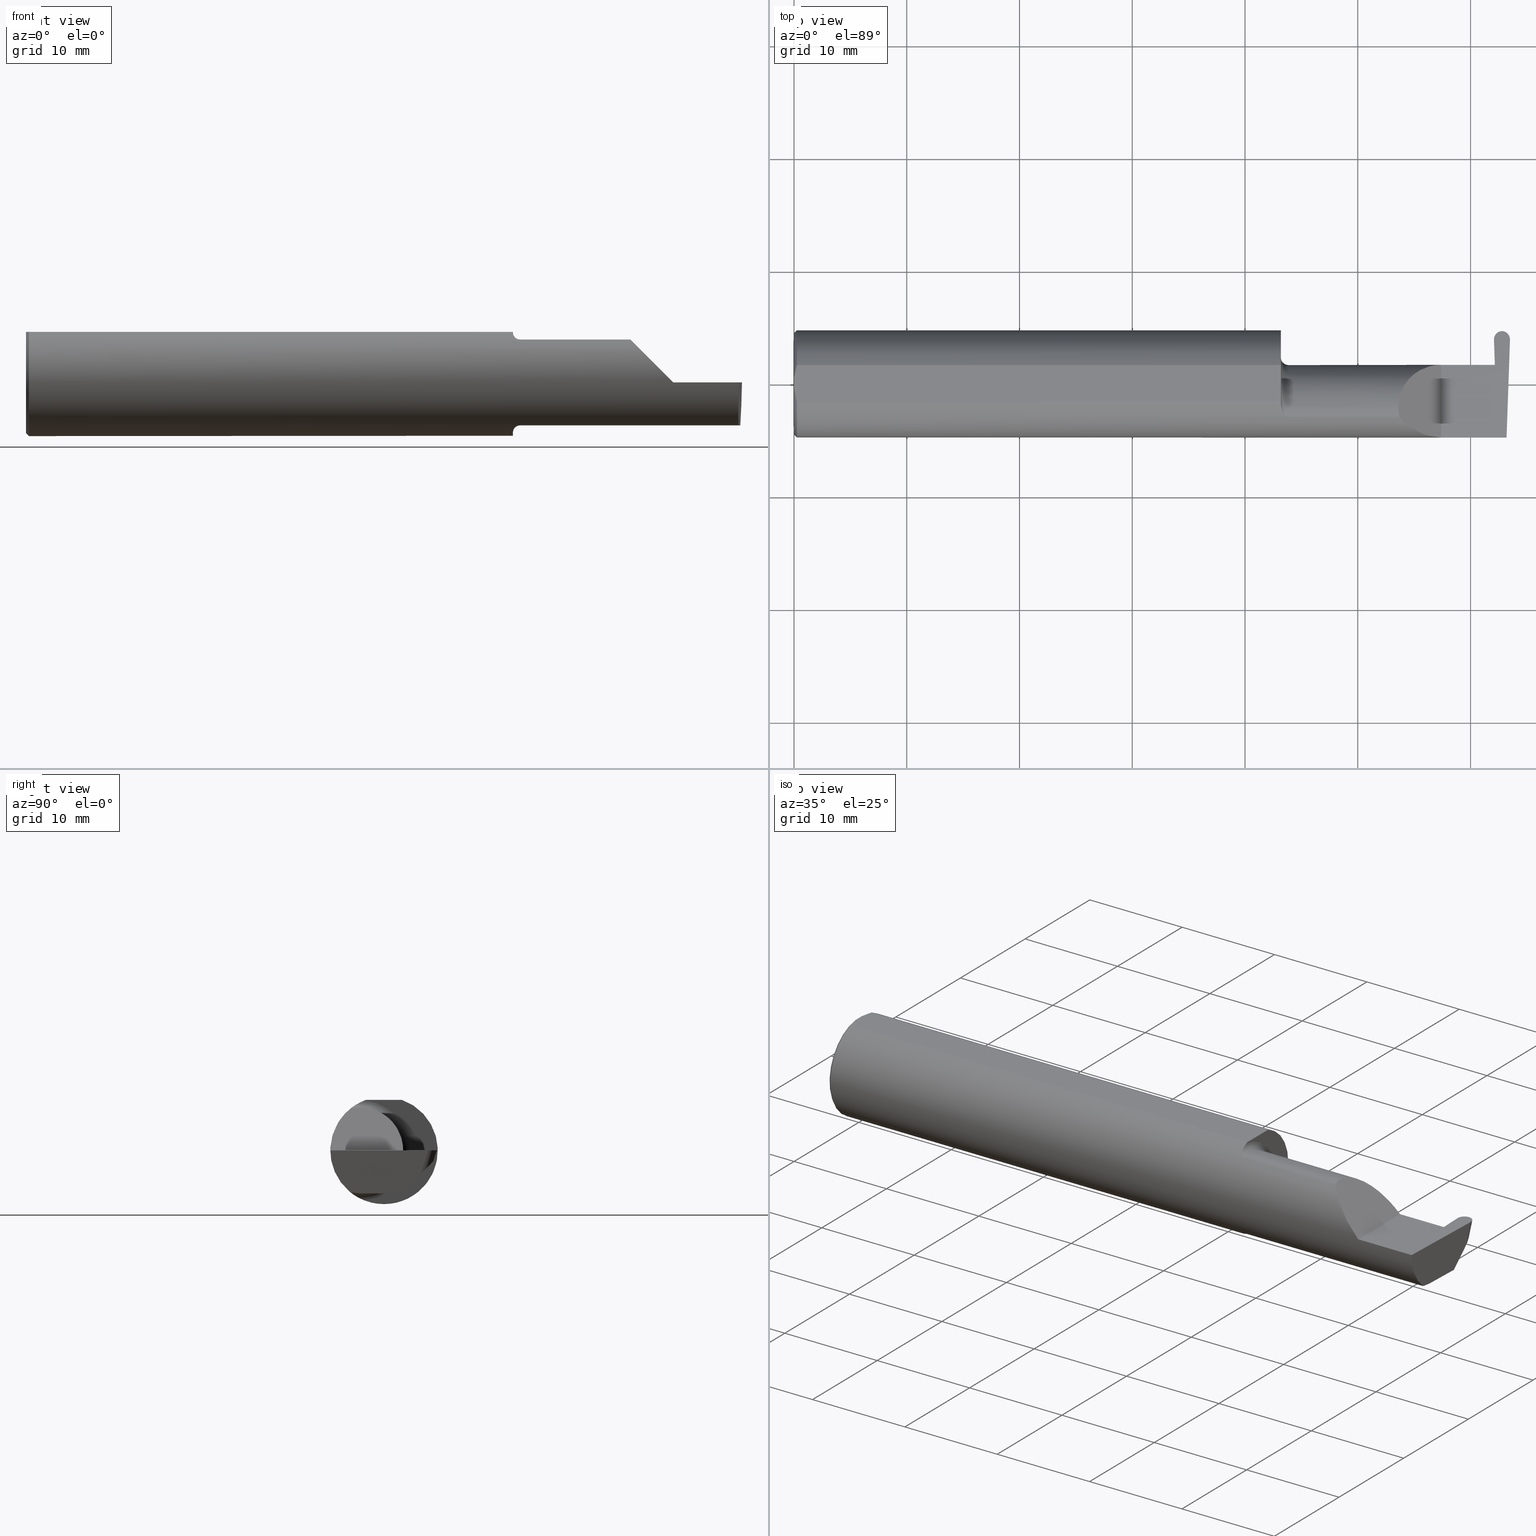
[diagram: canonical four-view strip — front | top / right | iso, engineering-drawing reading convention]
A machine part, canonical four-view strip (front | top / right | iso — engineering-drawing reading convention). The complete STEP part file that produces these views, byte-faithful:
ISO-10303-21;
HEADER;
FILE_DESCRIPTION (( 'STEP AP203' ),
    '1' );
FILE_NAME ('222125-GFR055-12.STEP',
    '2024-06-26T18:48:59',
    ( '' ),
    ( '' ),
    'SwSTEP 2.0',
    'SolidWorks 2024',
    '' );
FILE_SCHEMA (( 'CONFIG_CONTROL_DESIGN' ));
ENDSEC;

DATA;
#1 = LINE ( 'NONE', #637, #791 ) ;
#2 = VERTEX_POINT ( 'NONE', #398 ) ;
#3 = DIRECTION ( 'NONE',  ( 1.000000000000000000, 0.000000000000000000, 0.000000000000000000 ) ) ;
#4 = DIRECTION ( 'NONE',  ( -1.000000000000000000, -0.000000000000000000, -0.000000000000000000 ) ) ;
#5 = ORIENTED_EDGE ( 'NONE', *, *, #61, .F. ) ;
#6 = CARTESIAN_POINT ( 'NONE',  ( 2.469848201527405251, 0.1789430992080996430, 0.07304586875446965333 ) ) ;
#7 = EDGE_CURVE ( 'NONE', #12, #704, #144, .T. ) ;
#8 = CC_DESIGN_APPROVAL ( #716, ( #85 ) ) ;
#9 = DIRECTION ( 'NONE',  ( 0.000000000000000000, 1.000000000000000000, 0.000000000000000000 ) ) ;
#10 = EDGE_LOOP ( 'NONE', ( #45, #421, #110, #97, #51, #138, #318, #122 ) ) ;
#11 = CARTESIAN_POINT ( 'NONE',  ( 2.488006099050898090, -0.1873499999999999888, 0.000000000000000000 ) ) ;
#12 = VERTEX_POINT ( 'NONE', #316 ) ;
#13 = AXIS2_PLACEMENT_3D ( 'NONE', #232, #229, #283 ) ;
#14 = VERTEX_POINT ( 'NONE', #259 ) ;
#15 = PLANE ( 'NONE',  #194 ) ;
#16 = CIRCLE ( 'NONE', #303, 0.1773499999999999521 ) ;
#17 = EDGE_CURVE ( 'NONE', #14, #160, #527, .T. ) ;
#18 = VECTOR ( 'NONE', #664, 39.37007874015748143 ) ;
#19 = CARTESIAN_POINT ( 'NONE',  ( 1.724999999999999867, -0.08334999999999999354, 0.000000000000000000 ) ) ;
#20 = EDGE_LOOP ( 'NONE', ( #375, #736, #586, #486, #120, #430, #731, #69, #662, #519, #480, #152, #294, #5, #434 ) ) ;
#21 = CARTESIAN_POINT ( 'NONE',  ( 2.084449999999999914, -0.1172600179964006784, -0.1461167706989303650 ) ) ;
#22 = DIRECTION ( 'NONE',  ( 0.000000000000000000, 0.000000000000000000, -1.000000000000000000 ) ) ;
#23 = CIRCLE ( 'NONE', #636, 0.1873499999999999888 ) ;
#24 = MECHANICAL_CONTEXT ( 'NONE', #324, 'mechanical' ) ;
#25 = VERTEX_POINT ( 'NONE', #402 ) ;
#26 = EDGE_CURVE ( 'NONE', #672, #749, #309, .T. ) ;
#27 = VECTOR ( 'NONE', #201, 39.37007874015748143 ) ;
#28 = DIRECTION ( 'NONE',  ( 0.000000000000000000, 0.000000000000000000, -1.000000000000000000 ) ) ;
#29 = PERSON_AND_ORGANIZATION_ROLE ( 'creator' ) ;
#30 = ORIENTED_EDGE ( 'NONE', *, *, #297, .T. ) ;
#31 = AXIS2_PLACEMENT_3D ( 'NONE', #108, #800, #559 ) ;
#32 = ADVANCED_FACE ( 'NONE', ( #698 ), #343, .F. ) ;
#33 = DIRECTION ( 'NONE',  ( -1.000000000000000000, -0.000000000000000000, -0.000000000000000000 ) ) ;
#34 = CARTESIAN_POINT ( 'NONE',  ( 2.488618975064261996, -0.09477667630339429994, -0.1499999999999999944 ) ) ;
#35 = ORIENTED_EDGE ( 'NONE', *, *, #634, .F. ) ;
#36 = CARTESIAN_POINT ( 'NONE',  ( 2.260000000000000231, -0.2500000000000000555, 2.939152317953647352E-17 ) ) ;
#37 = EDGE_CURVE ( 'NONE', #134, #299, #460, .T. ) ;
#38 = LINE ( 'NONE', #589, #554 ) ;
#39 = APPROVAL_DATE_TIME ( #354, #716 ) ;
#40 = ORIENTED_EDGE ( 'NONE', *, *, #745, .T. ) ;
#41 = CC_DESIGN_APPROVAL ( #682, ( #357 ) ) ;
#42 = CARTESIAN_POINT ( 'NONE',  ( 1.701062863587533558, -0.08334999999998819742, 0.1677879614275170628 ) ) ;
#43 = LINE ( 'NONE', #233, #737 ) ;
#44 = APPROVAL_ROLE ( '' ) ;
#45 = ORIENTED_EDGE ( 'NONE', *, *, #441, .F. ) ;
#46 = CARTESIAN_POINT ( 'NONE',  ( 1.709249444250374728, -0.1073163636891285855, 0.1536158790136665231 ) ) ;
#47 = ORIENTED_EDGE ( 'NONE', *, *, #462, .T. ) ;
#48 = AXIS2_PLACEMENT_3D ( 'NONE', #6, #75, #688 ) ;
#49 = EDGE_CURVE ( 'NONE', #416, #215, #521, .T. ) ;
#50 = CARTESIAN_POINT ( 'NONE',  ( 2.498888753813990782, 0.1529658124618460957, -0.05733723908130370500 ) ) ;
#51 = ORIENTED_EDGE ( 'NONE', *, *, #376, .T. ) ;
#52 = DIRECTION ( 'NONE',  ( 0.02739170151060046562, 0.3089010440752013031, 0.9506996579664918068 ) ) ;
#53 = ORIENTED_EDGE ( 'NONE', *, *, #404, .T. ) ;
#54 = ADVANCED_FACE ( 'NONE', ( #455 ), #126, .F. ) ;
#55 = CARTESIAN_POINT ( 'NONE',  ( 1.701062863587535334, -0.08334999999999991027, -0.1677879614275112619 ) ) ;
#56 = CIRCLE ( 'NONE', #31, 0.1873499999999999888 ) ;
#57 = CARTESIAN_POINT ( 'NONE',  ( 1.699999999999999956, 0.000000000000000000, 0.000000000000000000 ) ) ;
#58 = ORIENTED_EDGE ( 'NONE', *, *, #351, .F. ) ;
#59 = VECTOR ( 'NONE', #213, 39.37007874015748143 ) ;
#60 = LINE ( 'NONE', #200, #290 ) ;
#61 = EDGE_CURVE ( 'NONE', #672, #344, #465, .T. ) ;
#62 = EDGE_LOOP ( 'NONE', ( #178, #450, #87, #53, #394, #807 ) ) ;
#63 = CYLINDRICAL_SURFACE ( 'NONE', #48, 0.02800000000000000058 ) ;
#64 = CARTESIAN_POINT ( 'NONE',  ( 0.000000000000000000, 0.000000000000000000, 0.000000000000000000 ) ) ;
#65 =( NAMED_UNIT ( * ) PLANE_ANGLE_UNIT ( ) SI_UNIT ( $, .RADIAN. ) );
#66 = ORIENTED_EDGE ( 'NONE', *, *, #117, .T. ) ;
#67 = DIRECTION ( 'NONE',  ( -1.000000000000000000, -0.000000000000000000, -0.000000000000000000 ) ) ;
#68 = CARTESIAN_POINT ( 'NONE',  ( 2.443917087302114766, 0.1556210691174950977, 0.000000000000000000 ) ) ;
#69 = ORIENTED_EDGE ( 'NONE', *, *, #382, .F. ) ;
#70 = APPROVAL ( #730, 'UNSPECIFIED' ) ;
#71 = EDGE_CURVE ( 'NONE', #444, #323, #1, .T. ) ;
#72 = FACE_OUTER_BOUND ( 'NONE', #624, .T. ) ;
#73 = DIRECTION ( 'NONE',  ( 0.9998367324388628408, 0.0003153570480505037848, 0.01806679318280284691 ) ) ;
#74 = ORIENTED_EDGE ( 'NONE', *, *, #254, .T. ) ;
#75 = DIRECTION ( 'NONE',  ( -0.02739170151060045175, 0.3089010440752013587, 0.9506996579664920288 ) ) ;
#76 = DIRECTION ( 'NONE',  ( 0.000000000000000000, 0.000000000000000000, -1.000000000000000000 ) ) ;
#77 = EDGE_CURVE ( 'NONE', #168, #467, #140, .T. ) ;
#78 = CARTESIAN_POINT ( 'NONE',  ( 2.260000000000000231, -0.1873499999999999888, 2.939152317953647352E-17 ) ) ;
#79 = DIRECTION ( 'NONE',  ( 0.000000000000000000, 0.000000000000000000, 1.000000000000000000 ) ) ;
#80 = ORIENTED_EDGE ( 'NONE', *, *, #541, .F. ) ;
#81 = DIRECTION ( 'NONE',  ( -1.000000000000000000, 0.000000000000000000, 1.224646799147353947E-16 ) ) ;
#82 = VECTOR ( 'NONE', #772, 39.37007874015748143 ) ;
#83 = VECTOR ( 'NONE', #511, 39.37007874015748143 ) ;
#84 = CARTESIAN_POINT ( 'NONE',  ( 2.470340804352568753, 0.1370935646770005678, -0.05575375471034092062 ) ) ;
#85 = PRODUCT_DEFINITION ( 'UNKNOWN', '', #482, #98 ) ;
#86 = DATE_AND_TIME ( #349, #610 ) ;
#87 = ORIENTED_EDGE ( 'NONE', *, *, #765, .F. ) ;
#88 = DIRECTION ( 'NONE',  ( 0.000000000000000000, 0.000000000000000000, 1.000000000000000000 ) ) ;
#89 = LINE ( 'NONE', #778, #798 ) ;
#90 = EDGE_CURVE ( 'NONE', #403, #160, #243, .T. ) ;
#91 = APPROVAL_DATE_TIME ( #657, #682 ) ;
#92 = ORIENTED_EDGE ( 'NONE', *, *, #77, .T. ) ;
#93 =( BOUNDED_CURVE ( )  B_SPLINE_CURVE ( 3, ( #417, #352, #94, #540 ),
 .UNSPECIFIED., .F., .T. ) 
 B_SPLINE_CURVE_WITH_KNOTS ( ( 4, 4 ),
 ( 4.712388980384688786, 5.606916381293135743 ),
 .UNSPECIFIED. ) 
 CURVE ( )  GEOMETRIC_REPRESENTATION_ITEM ( )  RATIONAL_B_SPLINE_CURVE ( ( 1.000000000000000000, 0.9344226172588803170, 0.9344226172588803170, 1.000000000000000000 ) ) 
 REPRESENTATION_ITEM ( '' )  );
#94 = CARTESIAN_POINT ( 'NONE',  ( 2.150065971957465294, -0.1623470442677542591, 0.1099340280425336325 ) ) ;
#95 = CARTESIAN_POINT ( 'NONE',  ( 0.000000000000000000, 0.000000000000000000, 0.000000000000000000 ) ) ;
#96 = APPROVAL_ROLE ( '' ) ;
#97 = ORIENTED_EDGE ( 'NONE', *, *, #254, .F. ) ;
#98 = DESIGN_CONTEXT ( 'detailed design', #372, 'design' ) ;
#99 = B_SPLINE_CURVE_WITH_KNOTS ( 'NONE', 3,
 ( #118, #555, #295, #742 ),
 .UNSPECIFIED., .F., .F.,
 ( 4, 4 ),
 ( 0.009771445421851331775, 0.01092787937989104369 ),
 .UNSPECIFIED. ) ;
#100 = DIRECTION ( 'NONE',  ( 1.000000000000000000, 0.000000000000000000, 0.000000000000000000 ) ) ;
#101 = CARTESIAN_POINT ( 'NONE',  ( 2.437842457400084761, 0.06658908270190944112, -0.003489949670253273024 ) ) ;
#102 = EDGE_LOOP ( 'NONE', ( #228, #252, #766, #276, #80, #260 ) ) ;
#103 = DIRECTION ( 'NONE',  ( 0.000000000000000000, 0.000000000000000000, 1.000000000000000000 ) ) ;
#104 = CARTESIAN_POINT ( 'NONE',  ( 2.455608802696933157, 0.1715101730526973345, -0.03879287849045225112 ) ) ;
#105 = PERSON_AND_ORGANIZATION_ROLE ( 'creator' ) ;
#106 = VERTEX_POINT ( 'NONE', #131 ) ;
#107 = EDGE_CURVE ( 'NONE', #558, #749, #491, .T. ) ;
#108 = CARTESIAN_POINT ( 'NONE',  ( 0.01000000000000013205, 0.000000000000000000, 0.000000000000000000 ) ) ;
#109 = CARTESIAN_POINT ( 'NONE',  ( 2.445011246186010734, 0.1529658124618456516, -0.05733723908130411440 ) ) ;
#110 = ORIENTED_EDGE ( 'NONE', *, *, #107, .F. ) ;
#111 = CARTESIAN_POINT ( 'NONE',  ( 1.702380638915944600, -0.09060738690120614947, -0.1640321561807271122 ) ) ;
#112 = CARTESIAN_POINT ( 'NONE',  ( 2.472196486352602030, 0.1846500000000000363, 0.000000000000000000 ) ) ;
#113 = VERTEX_POINT ( 'NONE', #192 ) ;
#114 = CARTESIAN_POINT ( 'NONE',  ( 2.109999999999998987, -0.08334999999999999354, 0.1499999999999999944 ) ) ;
#115 = CARTESIAN_POINT ( 'NONE',  ( 0.001616639753276021213, 0.03405189565400638246, 0.1763499999999999235 ) ) ;
#116 = ORIENTED_EDGE ( 'NONE', *, *, #231, .F. ) ;
#117 = EDGE_CURVE ( 'NONE', #467, #113, #16, .T. ) ;
#118 = CARTESIAN_POINT ( 'NONE',  ( 0.01000000000000013205, -0.06325108694718235836, 0.1763499999999999235 ) ) ;
#119 = DIRECTION ( 'NONE',  ( -1.000000000000000000, -0.000000000000000000, -0.000000000000000000 ) ) ;
#120 = ORIENTED_EDGE ( 'NONE', *, *, #569, .F. ) ;
#121 = CARTESIAN_POINT ( 'NONE',  ( 0.000000000000000000, 0.01880691362238934988, 0.1763499999999999235 ) ) ;
#122 = ORIENTED_EDGE ( 'NONE', *, *, #305, .F. ) ;
#123 = VECTOR ( 'NONE', #782, 39.37007874015748143 ) ;
#124 = VECTOR ( 'NONE', #646, 39.37007874015748143 ) ;
#125 = DIRECTION ( 'NONE',  ( 0.000000000000000000, -0.7071067811865515695, 0.7071067811865434649 ) ) ;
#126 = PLANE ( 'NONE',  #453 ) ;
#127 = ORIENTED_EDGE ( 'NONE', *, *, #117, .F. ) ;
#128 = AXIS2_PLACEMENT_3D ( 'NONE', #557, #801, #177 ) ;
#129 = CARTESIAN_POINT ( 'NONE',  ( 2.449754845031671291, 0.002105059811798251287, -0.1500000000000000222 ) ) ;
#130 = AXIS2_PLACEMENT_3D ( 'NONE', #756, #647, #79 ) ;
#131 = CARTESIAN_POINT ( 'NONE',  ( 0.01000000000000013205, 0.06325108694718235836, 0.1763499999999999235 ) ) ;
#132 = ADVANCED_FACE ( 'NONE', ( #137 ), #393, .F. ) ;
#133 = EDGE_CURVE ( 'NONE', #704, #386, #322, .T. ) ;
#134 = VERTEX_POINT ( 'NONE', #763 ) ;
#135 = CIRCLE ( 'NONE', #663, 0.02499999999999993894 ) ;
#136 = CARTESIAN_POINT ( 'NONE',  ( 2.471950000000000536, 0.1818703299733204493, -0.008554944679891244089 ) ) ;
#137 = FACE_OUTER_BOUND ( 'NONE', #607, .T. ) ;
#138 = ORIENTED_EDGE ( 'NONE', *, *, #237, .T. ) ;
#139 = FACE_OUTER_BOUND ( 'NONE', #561, .T. ) ;
#140 = LINE ( 'NONE', #448, #549 ) ;
#141 = EDGE_CURVE ( 'NONE', #25, #14, #522, .T. ) ;
#142 = ORIENTED_EDGE ( 'NONE', *, *, #297, .F. ) ;
#143 = FACE_OUTER_BOUND ( 'NONE', #580, .T. ) ;
#144 = LINE ( 'NONE', #512, #387 ) ;
#145 = DIRECTION ( 'NONE',  ( -0.9992386149554828290, 0.03489418134010779937, 0.01745240643728358798 ) ) ;
#146 = CARTESIAN_POINT ( 'NONE',  ( 0.000000000000000000, 0.000000000000000000, -0.1773499999999999521 ) ) ;
#147 = ORIENTED_EDGE ( 'NONE', *, *, #395, .T. ) ;
#148 = PLANE ( 'NONE',  #249 ) ;
#149 = AXIS2_PLACEMENT_3D ( 'NONE', #644, #582, #640 ) ;
#150 = DIRECTION ( 'NONE',  ( -0.03489949670249503644, 0.9993908270190959842, -0.000000000000000000 ) ) ;
#151 = APPROVAL_STATUS ( 'not_yet_approved' ) ;
#152 = ORIENTED_EDGE ( 'NONE', *, *, #608, .F. ) ;
#153 = CARTESIAN_POINT ( 'NONE',  ( 2.443960049305725857, 0.1543907983005533280, 0.000000000000000000 ) ) ;
#154 = CARTESIAN_POINT ( 'NONE',  ( 2.447024025498200750, 0.06664999999999991764, 0.000000000000000000 ) ) ;
#155 = COORDINATED_UNIVERSAL_TIME_OFFSET ( 8, 0, .BEHIND. ) ;
#156 = ORIENTED_EDGE ( 'NONE', *, *, #231, .T. ) ;
#157 = EDGE_CURVE ( 'NONE', #248, #613, #656, .T. ) ;
#158 = CARTESIAN_POINT ( 'NONE',  ( 0.000000000000000000, 0.000000000000000000, 0.000000000000000000 ) ) ;
#159 = DIRECTION ( 'NONE',  ( 0.000000000000000000, 0.000000000000000000, 1.000000000000000000 ) ) ;
#160 = VERTEX_POINT ( 'NONE', #154 ) ;
#161 = AXIS2_PLACEMENT_3D ( 'NONE', #263, #708, #81 ) ;
#162 = CARTESIAN_POINT ( 'NONE',  ( 1.711340974786206282, -0.1102890168945987320, -0.1514792188789464700 ) ) ;
#163 = LINE ( 'NONE', #671, #378 ) ;
#164 = ORIENTED_EDGE ( 'NONE', *, *, #214, .F. ) ;
#165 = EDGE_CURVE ( 'NONE', #308, #495, #89, .T. ) ;
#166 = DIRECTION ( 'NONE',  ( 0.000000000000000000, 0.000000000000000000, 1.000000000000000000 ) ) ;
#167 = CARTESIAN_POINT ( 'NONE',  ( 1.701062863587533558, -0.08334999999998819742, 0.1677879614275170628 ) ) ;
#168 = VERTEX_POINT ( 'NONE', #419 ) ;
#169 = FACE_OUTER_BOUND ( 'NONE', #287, .T. ) ;
#170 = VERTEX_POINT ( 'NONE', #729 ) ;
#171 = CARTESIAN_POINT ( 'NONE',  ( 1.724999999999999867, -0.08334999999999999354, 0.000000000000000000 ) ) ;
#172 = EDGE_CURVE ( 'NONE', #699, #323, #723, .T. ) ;
#173 = CARTESIAN_POINT ( 'NONE',  ( 1.699999999999999956, 0.06325108694718235836, 0.1763499999999999235 ) ) ;
#174 =( BOUNDED_CURVE ( )  B_SPLINE_CURVE ( 3, ( #588, #719, #274, #153 ),
 .UNSPECIFIED., .F., .T. ) 
 B_SPLINE_CURVE_WITH_KNOTS ( ( 4, 4 ),
 ( 6.199081184676152212, 7.797674339294876411 ),
 .UNSPECIFIED. ) 
 CURVE ( )  GEOMETRIC_REPRESENTATION_ITEM ( )  RATIONAL_B_SPLINE_CURVE ( ( 1.000000000000000000, 0.7981407609938082626, 0.7981407609938082626, 1.000000000000000000 ) ) 
 REPRESENTATION_ITEM ( '' )  );
#175 = ORIENTED_EDGE ( 'NONE', *, *, #395, .F. ) ;
#176 = LINE ( 'NONE', #373, #598 ) ;
#177 = DIRECTION ( 'NONE',  ( 0.000000000000000000, 0.000000000000000000, -1.000000000000000000 ) ) ;
#178 = ORIENTED_EDGE ( 'NONE', *, *, #26, .F. ) ;
#179 = CC_DESIGN_APPROVAL ( #70, ( #482 ) ) ;
#180 = DIMENSIONAL_EXPONENTS ( 1.000000000000000000, 0.000000000000000000, 0.000000000000000000, 0.000000000000000000, 0.000000000000000000, 0.000000000000000000, 0.000000000000000000 ) ;
#181 = CARTESIAN_POINT ( 'NONE',  ( 2.472196486352602030, 0.1846500000000000363, 0.000000000000000000 ) ) ;
#182 = EDGE_LOOP ( 'NONE', ( #797, #633, #390, #269 ) ) ;
#183 = DIRECTION ( 'NONE',  ( 0.000000000000000000, 0.000000000000000000, -1.000000000000000000 ) ) ;
#184 = DIRECTION ( 'NONE',  ( -0.03489949670249503644, 0.9993908270190959842, 0.000000000000000000 ) ) ;
#185 = AXIS2_PLACEMENT_3D ( 'NONE', #19, #264, #204 ) ;
#186 = VECTOR ( 'NONE', #211, 39.37007874015748143 ) ;
#187 = DIRECTION ( 'NONE',  ( 1.000000000000000000, -0.000000000000000000, -0.000000000000000000 ) ) ;
#188 = CARTESIAN_POINT ( 'NONE',  ( 1.724999999999999867, -0.08334999999999999354, 0.000000000000000000 ) ) ;
#189 = ORIENTED_EDGE ( 'NONE', *, *, #296, .T. ) ;
#190 = PLANE ( 'NONE',  #556 ) ;
#191 =( BOUNDED_CURVE ( )  B_SPLINE_CURVE ( 3, ( #236, #550, #680, #374 ),
 .UNSPECIFIED., .F., .T. ) 
 B_SPLINE_CURVE_WITH_KNOTS ( ( 4, 4 ),
 ( 5.852427379562165299, 6.746954780470612256 ),
 .UNSPECIFIED. ) 
 CURVE ( )  GEOMETRIC_REPRESENTATION_ITEM ( )  RATIONAL_B_SPLINE_CURVE ( ( 1.000000000000000000, 0.9344226172588803170, 0.9344226172588803170, 1.000000000000000000 ) ) 
 REPRESENTATION_ITEM ( '' )  );
#192 = CARTESIAN_POINT ( 'NONE',  ( 0.000000000000000000, 0.000000000000000000, -0.1773499999999999521 ) ) ;
#193 = ORIENTED_EDGE ( 'NONE', *, *, #37, .F. ) ;
#194 = AXIS2_PLACEMENT_3D ( 'NONE', #530, #145, #771 ) ;
#195 = CARTESIAN_POINT ( 'NONE',  ( 1.724999999999999867, -0.08334999999999999354, 0.1499999999999999944 ) ) ;
#196 = EDGE_CURVE ( 'NONE', #12, #355, #630, .T. ) ;
#197 = ORIENTED_EDGE ( 'NONE', *, *, #516, .T. ) ;
#198 = EDGE_CURVE ( 'NONE', #170, #134, #794, .T. ) ;
#199 = TOROIDAL_SURFACE ( 'NONE', #185, 0.1749999999999999334, 0.02499999999999993894 ) ;
#200 = CARTESIAN_POINT ( 'NONE',  ( 1.699999999999999956, -0.08334999999999997966, -0.1499999999999999944 ) ) ;
#201 = DIRECTION ( 'NONE',  ( 1.000000000000000000, -0.000000000000000000, -0.000000000000000000 ) ) ;
#202 = ORIENTED_EDGE ( 'NONE', *, *, #505, .F. ) ;
#203 = CARTESIAN_POINT ( 'NONE',  ( 2.449666718533190846, 0.06409798100084941608, -0.1462050705423013908 ) ) ;
#204 = DIRECTION ( 'NONE',  ( 0.000000000000000000, 0.000000000000000000, 1.000000000000000000 ) ) ;
#205 = COORDINATED_UNIVERSAL_TIME_OFFSET ( 8, 0, .BEHIND. ) ;
#206 = ORIENTED_EDGE ( 'NONE', *, *, #581, .T. ) ;
#207 = FACE_OUTER_BOUND ( 'NONE', #694, .T. ) ;
#208 = CARTESIAN_POINT ( 'NONE',  ( 2.496474746315712867, 0.1068850723125632091, -0.1034179792305871259 ) ) ;
#209 = CALENDAR_DATE ( 2024, 26, 6 ) ;
#210 = ORIENTED_EDGE ( 'NONE', *, *, #669, .F. ) ;
#211 = DIRECTION ( 'NONE',  ( -1.000000000000000000, -0.000000000000000000, -0.000000000000000000 ) ) ;
#212 = ADVANCED_FACE ( 'NONE', ( #665 ), #275, .T. ) ;
#213 = DIRECTION ( 'NONE',  ( -0.03701744261649874551, 0.7066221440565398915, 0.7066221440565479961 ) ) ;
#214 = EDGE_CURVE ( 'NONE', #495, #570, #601, .T. ) ;
#215 = VERTEX_POINT ( 'NONE', #348 ) ;
#216 = CARTESIAN_POINT ( 'NONE',  ( 2.449736488887833907, 0.06030305154315079852, -0.1500000000000000500 ) ) ;
#217 = DIRECTION ( 'NONE',  ( 0.000000000000000000, 0.9510565162951533091, -0.3090169943749483950 ) ) ;
#218 = PRODUCT ( '222125-GFR055-12', '222125-GFR055-12', '', ( #24 ) ) ;
#219 = DIRECTION ( 'NONE',  ( 1.000000000000000000, 0.000000000000000000, -0.000000000000000000 ) ) ;
#220 = CARTESIAN_POINT ( 'NONE',  ( 0.000000000000000000, 0.000000000000000000, 0.000000000000000000 ) ) ;
#221 = ADVANCED_FACE ( 'NONE', ( #650 ), #537, .T. ) ;
#222 = DATE_TIME_ROLE ( 'creation_date' ) ;
#223 = VERTEX_POINT ( 'NONE', #531 ) ;
#224 = DIRECTION ( 'NONE',  ( 0.000000000000000000, 0.000000000000000000, 1.000000000000000000 ) ) ;
#225 = AXIS2_PLACEMENT_3D ( 'NONE', #641, #73, #574 ) ;
#226 = CARTESIAN_POINT ( 'NONE',  ( 2.499939950694276103, 0.1543907983005533280, 0.000000000000000000 ) ) ;
#227 = CIRCLE ( 'NONE', #654, 0.1499999999999999944 ) ;
#228 = ORIENTED_EDGE ( 'NONE', *, *, #172, .T. ) ;
#229 = DIRECTION ( 'NONE',  ( 1.000000000000000000, 0.000000000000000000, 0.000000000000000000 ) ) ;
#230 = ORIENTED_EDGE ( 'NONE', *, *, #165, .F. ) ;
#231 = EDGE_CURVE ( 'NONE', #215, #240, #425, .T. ) ;
#232 = CARTESIAN_POINT ( 'NONE',  ( 0.000000000000000000, 0.000000000000000000, 0.000000000000000000 ) ) ;
#233 = CARTESIAN_POINT ( 'NONE',  ( 2.499950392650356346, 0.1545085540790380740, 0.0003624150208497705782 ) ) ;
#234 = ORIENTED_EDGE ( 'NONE', *, *, #415, .T. ) ;
#235 = CARTESIAN_POINT ( 'NONE',  ( 1.705806801261507077, -0.1009700360460132340, -0.1578590382459147401 ) ) ;
#236 = CARTESIAN_POINT ( 'NONE',  ( 2.487901662807321390, -0.1172600179964006784, -0.1461167706989303650 ) ) ;
#237 = EDGE_CURVE ( 'NONE', #327, #14, #38, .T. ) ;
#238 = EDGE_LOOP ( 'NONE', ( #707, #189, #471, #583 ) ) ;
#239 = ADVANCED_BREP_SHAPE_REPRESENTATION ( '222125-GFR055-12', ( #341, #257 ), #524 ) ;
#240 = VERTEX_POINT ( 'NONE', #546 ) ;
#241 = LOCAL_TIME ( 11, 48, 59.00000000000000000, #205 ) ;
#242 = CARTESIAN_POINT ( 'NONE',  ( 2.443960049305725857, 0.1543907983005533280, 0.000000000000000000 ) ) ;
#243 = LINE ( 'NONE', #754, #447 ) ;
#244 = ADVANCED_FACE ( 'NONE', ( #789 ), #768, .T. ) ;
#245 = CARTESIAN_POINT ( 'NONE',  ( -0.001039370078739994957, 0.1723030515431495657, -0.03799999999999999906 ) ) ;
#246 =( BOUNDED_CURVE ( )  B_SPLINE_CURVE ( 3, ( #136, #255, #315, #816 ),
 .UNSPECIFIED., .F., .T. ) 
 B_SPLINE_CURVE_WITH_KNOTS ( ( 4, 4 ),
 ( 1.570796326794885678, 1.601113425804750801 ),
 .UNSPECIFIED. ) 
 CURVE ( )  GEOMETRIC_REPRESENTATION_ITEM ( )  RATIONAL_B_SPLINE_CURVE ( ( 1.000000000000000000, 0.9999234075922796006, 0.9999234075922796006, 1.000000000000000000 ) ) 
 REPRESENTATION_ITEM ( '' )  );
#247 = DIRECTION ( 'NONE',  ( -0.000000000000000000, 1.000000000000000000, -0.000000000000000000 ) ) ;
#248 = VERTEX_POINT ( 'NONE', #268 ) ;
#249 = AXIS2_PLACEMENT_3D ( 'NONE', #36, #481, #278 ) ;
#250 = CYLINDRICAL_SURFACE ( 'NONE', #332, 0.1499999999999999944 ) ;
#251 = DIRECTION ( 'NONE',  ( 0.000000000000000000, 0.000000000000000000, 1.000000000000000000 ) ) ;
#252 = ORIENTED_EDGE ( 'NONE', *, *, #317, .T. ) ;
#253 =( BOUNDED_CURVE ( )  B_SPLINE_CURVE ( 3, ( #226, #508, #750, #181 ),
 .UNSPECIFIED., .F., .F. ) 
 B_SPLINE_CURVE_WITH_KNOTS ( ( 4, 4 ),
 ( 1.627103621474501827, 3.225696776093226248 ),
 .UNSPECIFIED. ) 
 CURVE ( )  GEOMETRIC_REPRESENTATION_ITEM ( )  RATIONAL_B_SPLINE_CURVE ( ( 1.000000000000000000, 0.7981407609938081515, 0.7981407609938081515, 1.000000000000000000 ) ) 
 REPRESENTATION_ITEM ( '' )  );
#254 = EDGE_CURVE ( 'NONE', #603, #558, #163, .T. ) ;
#255 = CARTESIAN_POINT ( 'NONE',  ( 2.471950000000000536, 0.1786780247761809715, -0.01837984983076660500 ) ) ;
#256 = DIRECTION ( 'NONE',  ( 0.02739170151060044828, -0.3089010440752013031, -0.9506996579664918068 ) ) ;
#257 = AXIS2_PLACEMENT_3D ( 'NONE', #407, #426, #595 ) ;
#258 = DIRECTION ( 'NONE',  ( -1.000000000000000000, -0.000000000000000000, -0.000000000000000000 ) ) ;
#259 = CARTESIAN_POINT ( 'NONE',  ( 2.437903374698175529, 0.06664999999999991764, 0.000000000000000000 ) ) ;
#260 = ORIENTED_EDGE ( 'NONE', *, *, #505, .T. ) ;
#261 = AXIS2_PLACEMENT_3D ( 'NONE', #479, #406, #28 ) ;
#262 = VECTOR ( 'NONE', #187, 39.37007874015748143 ) ;
#263 = CARTESIAN_POINT ( 'NONE',  ( 2.500000000000000000, -0.2500000000000000555, 0.000000000000000000 ) ) ;
#264 = DIRECTION ( 'NONE',  ( -1.000000000000000000, -0.000000000000000000, -0.000000000000000000 ) ) ;
#265 = ORIENTED_EDGE ( 'NONE', *, *, #382, .T. ) ;
#266 = VECTOR ( 'NONE', #432, 39.37007874015748854 ) ;
#267 = CARTESIAN_POINT ( 'NONE',  ( 1.699999999999999956, -0.06325108694718287183, 0.1763499999999999235 ) ) ;
#268 = CARTESIAN_POINT ( 'NONE',  ( 2.497553638666706544, 0.1274799371216591704, -0.08282311442149091485 ) ) ;
#269 = ORIENTED_EDGE ( 'NONE', *, *, #17, .T. ) ;
#270 = CARTESIAN_POINT ( 'NONE',  ( 1.724999999999999867, -0.08334999999999999354, 0.000000000000000000 ) ) ;
#271 = CARTESIAN_POINT ( 'NONE',  ( 2.488245243745037527, -0.1061291577212409715, -0.1486999626928446339 ) ) ;
#272 = EDGE_LOOP ( 'NONE', ( #370, #457, #210, #116, #689 ) ) ;
#273 =( BOUNDED_CURVE ( )  B_SPLINE_CURVE ( 3, ( #301, #360, #679, #114 ),
 .UNSPECIFIED., .F., .F. ) 
 B_SPLINE_CURVE_WITH_KNOTS ( ( 4, 4 ),
 ( 6.055147272130141367, 6.283185307179586232 ),
 .UNSPECIFIED. ) 
 CURVE ( )  GEOMETRIC_REPRESENTATION_ITEM ( )  RATIONAL_B_SPLINE_CURVE ( ( 1.000000000000000000, 0.9956712472009929815, 0.9956712472009929815, 1.000000000000000000 ) ) 
 REPRESENTATION_ITEM ( '' )  );
#274 = CARTESIAN_POINT ( 'NONE',  ( 2.443344681402952911, 0.1720126294265148792, 3.503485321703165080E-18 ) ) ;
#275 = CYLINDRICAL_SURFACE ( 'NONE', #668, 0.1873499999999999888 ) ;
#276 = ORIENTED_EDGE ( 'NONE', *, *, #157, .T. ) ;
#277 = ADVANCED_FACE ( 'NONE', ( #329 ), #199, .F. ) ;
#278 = DIRECTION ( 'NONE',  ( -0.7071067811865509034, 0.000000000000000000, 0.7071067811865440200 ) ) ;
#279 = DIRECTION ( 'NONE',  ( 1.000000000000000000, 0.000000000000000000, 0.000000000000000000 ) ) ;
#280 = LOCAL_TIME ( 11, 48, 59.00000000000000000, #790 ) ;
#281 = CALENDAR_DATE ( 2024, 26, 6 ) ;
#282 = ORIENTED_EDGE ( 'NONE', *, *, #811, .F. ) ;
#283 = DIRECTION ( 'NONE',  ( 0.000000000000000000, 0.000000000000000000, -1.000000000000000000 ) ) ;
#284 = FACE_OUTER_BOUND ( 'NONE', #182, .T. ) ;
#285 = PERSON_AND_ORGANIZATION ( #397, #458 ) ;
#286 = CC_DESIGN_PERSON_AND_ORGANIZATION_ASSIGNMENT ( #606, #29, ( #85 ) ) ;
#287 = EDGE_LOOP ( 'NONE', ( #746, #193, #687, #566, #291 ) ) ;
#288 = CARTESIAN_POINT ( 'NONE',  ( 1.720724556588812071, -0.1172600179964061184, 0.1461167706989260351 ) ) ;
#289 = CARTESIAN_POINT ( 'NONE',  ( 2.260000000000000231, 0.06664999999999998703, 9.797174393178831081E-17 ) ) ;
#290 = VECTOR ( 'NONE', #67, 39.37007874015748143 ) ;
#291 = ORIENTED_EDGE ( 'NONE', *, *, #581, .F. ) ;
#292 = DIRECTION ( 'NONE',  ( -1.000000000000000000, -0.000000000000000000, -0.000000000000000000 ) ) ;
#293 = CARTESIAN_POINT ( 'NONE',  ( 0.005155213631852493573, 0.04890080824240055496, 0.1763499999999999235 ) ) ;
#294 = ORIENTED_EDGE ( 'NONE', *, *, #368, .F. ) ;
#295 = CARTESIAN_POINT ( 'NONE',  ( 0.001595548104417008695, -0.03385300050298640367, 0.1763499999999999235 ) ) ;
#296 = EDGE_CURVE ( 'NONE', #113, #355, #469, .T. ) ;
#297 = EDGE_CURVE ( 'NONE', #160, #444, #473, .T. ) ;
#298 = CARTESIAN_POINT ( 'NONE',  ( 2.447024025498200750, 0.06664999999999991764, -9.645561665750333182E-21 ) ) ;
#299 = VERTEX_POINT ( 'NONE', #805 ) ;
#300 = AXIS2_PLACEMENT_3D ( 'NONE', #563, #224, #219 ) ;
#301 = CARTESIAN_POINT ( 'NONE',  ( 2.113883229301068312, -0.1172600179964008171, 0.1461167706989301707 ) ) ;
#302 = DIRECTION ( 'NONE',  ( 0.000000000000000000, 0.000000000000000000, -1.000000000000000000 ) ) ;
#303 = AXIS2_PLACEMENT_3D ( 'NONE', #64, #703, #76 ) ;
#304 = ORIENTED_EDGE ( 'NONE', *, *, #569, .T. ) ;
#305 = EDGE_CURVE ( 'NONE', #403, #25, #619, .T. ) ;
#306 = LINE ( 'NONE', #759, #83 ) ;
#307 =( BOUNDED_CURVE ( )  B_SPLINE_CURVE ( 3, ( #439, #109, #104, #796 ),
 .UNSPECIFIED., .F., .T. ) 
 B_SPLINE_CURVE_WITH_KNOTS ( ( 4, 4 ),
 ( 4.698548015471834205, 6.266824071080692171 ),
 .UNSPECIFIED. ) 
 CURVE ( )  GEOMETRIC_REPRESENTATION_ITEM ( )  RATIONAL_B_SPLINE_CURVE ( ( 1.000000000000000000, 0.8053315133011073046, 0.8053315133011073046, 1.000000000000000000 ) ) 
 REPRESENTATION_ITEM ( '' )  );
#308 = VERTEX_POINT ( 'NONE', #356 ) ;
#309 = CIRCLE ( 'NONE', #130, 0.02499999999999993894 ) ;
#310 = PLANE ( 'NONE',  #493 ) ;
#311 = CARTESIAN_POINT ( 'NONE',  ( 1.699999999999999956, -0.07359296612170568297, -0.1723769398647691520 ) ) ;
#312 = CC_DESIGN_PERSON_AND_ORGANIZATION_ASSIGNMENT ( #718, #779, ( #482 ) ) ;
#313 = EDGE_LOOP ( 'NONE', ( #30, #366, #678, #147, #553 ) ) ;
#314 = B_SPLINE_CURVE_WITH_KNOTS ( 'NONE', 3,
 ( #361, #115, #293, #739 ),
 .UNSPECIFIED., .F., .F.,
 ( 4, 4 ),
 ( 0.01188664626022242071, 0.01304646959483746725 ),
 .UNSPECIFIED. ) ;
#315 = CARTESIAN_POINT ( 'NONE',  ( 2.471950000000000536, 0.1754820070127635356, -0.02820230075863392610 ) ) ;
#316 = CARTESIAN_POINT ( 'NONE',  ( 0.01000000000000013205, -0.06325108694718235836, 0.1763499999999999235 ) ) ;
#317 = EDGE_CURVE ( 'NONE', #323, #337, #307, .T. ) ;
#318 = ORIENTED_EDGE ( 'NONE', *, *, #141, .F. ) ;
#319 = B_SPLINE_CURVE_WITH_KNOTS ( 'NONE', 3,
 ( #431, #728, #614, #438, #625, #162, #808, #235, #424, #111, #504, #55 ),
 .UNSPECIFIED., .F., .F.,
 ( 4, 2, 2, 2, 2, 4 ),
 ( 1.967976973658592312E-07, 0.0001599896235275545693, 0.0003197824493577432442, 0.0006393681010181212444, 0.0009589537526784992988, 0.001278539404338877245 ),
 .UNSPECIFIED. ) ;
#320 = PRODUCT_DEFINITION_SHAPE ( 'NONE', 'NONE',  #85 ) ;
#321 = FACE_OUTER_BOUND ( 'NONE', #10, .T. ) ;
#322 = LINE ( 'NONE', #579, #331 ) ;
#323 = VERTEX_POINT ( 'NONE', #564 ) ;
#324 = APPLICATION_CONTEXT ( 'configuration controlled 3d designs of mechanical parts and assemblies' ) ;
#325 = CYLINDRICAL_SURFACE ( 'NONE', #149, 0.1499999999999999944 ) ;
#326 = VERTEX_POINT ( 'NONE', #167 ) ;
#327 = VERTEX_POINT ( 'NONE', #735 ) ;
#328 = CARTESIAN_POINT ( 'NONE',  ( 1.701062863587535334, -0.08334999999999991027, -0.1677879614275112619 ) ) ;
#329 = FACE_OUTER_BOUND ( 'NONE', #62, .T. ) ;
#330 = ORIENTED_EDGE ( 'NONE', *, *, #541, .T. ) ;
#331 = VECTOR ( 'NONE', #9, 39.37007874015748143 ) ;
#332 = AXIS2_PLACEMENT_3D ( 'NONE', #396, #767, #814 ) ;
#333 = DIRECTION ( 'NONE',  ( 0.000000000000000000, 0.000000000000000000, -1.000000000000000000 ) ) ;
#334 = ADVANCED_FACE ( 'NONE', ( #284 ), #623, .F. ) ;
#335 = CARTESIAN_POINT ( 'NONE',  ( 2.487901662807321390, -0.1172600179964006784, -0.1461167706989303650 ) ) ;
#336 = APPROVAL_DATE_TIME ( #713, #70 ) ;
#337 = VERTEX_POINT ( 'NONE', #674 ) ;
#338 = VECTOR ( 'NONE', #119, 39.37007874015748143 ) ;
#339 = CARTESIAN_POINT ( 'NONE',  ( 0.000000000000000000, 0.06325108694718235836, 0.1763499999999999235 ) ) ;
#340 = DIRECTION ( 'NONE',  ( -0.03489949670249509889, -0.9993908270190959842, 0.000000000000000000 ) ) ;
#341 = MANIFOLD_SOLID_BREP ( 'Radii', #740 ) ;
#342 = SHAPE_DEFINITION_REPRESENTATION ( #320, #239 ) ;
#343 = TOROIDAL_SURFACE ( 'NONE', #775, 0.1749999999999999334, 0.02499999999999993894 ) ;
#344 = VERTEX_POINT ( 'NONE', #494 ) ;
#345 =( BOUNDED_CURVE ( )  B_SPLINE_CURVE ( 3, ( #560, #502, #626, #289 ),
 .UNSPECIFIED., .F., .T. ) 
 B_SPLINE_CURVE_WITH_KNOTS ( ( 4, 4 ),
 ( 0.000000000000000000, 1.570796326794896336 ),
 .UNSPECIFIED. ) 
 CURVE ( )  GEOMETRIC_REPRESENTATION_ITEM ( )  RATIONAL_B_SPLINE_CURVE ( ( 1.000000000000000000, 0.8047378541243650485, 0.8047378541243650485, 1.000000000000000000 ) ) 
 REPRESENTATION_ITEM ( '' )  );
#346 = DIRECTION ( 'NONE',  ( -1.000000000000000000, -0.000000000000000000, -0.000000000000000000 ) ) ;
#347 = AXIS2_PLACEMENT_3D ( 'NONE', #492, #292, #617 ) ;
#348 = CARTESIAN_POINT ( 'NONE',  ( 2.471950000000000536, 0.1818703299733204493, -0.008554944679891244089 ) ) ;
#349 = CALENDAR_DATE ( 2024, 26, 6 ) ;
#350 = ORIENTED_EDGE ( 'NONE', *, *, #774, .F. ) ;
#351 = EDGE_CURVE ( 'NONE', #170, #495, #191, .T. ) ;
#352 = CARTESIAN_POINT ( 'NONE',  ( 2.202189699843948745, -0.1873500000000000443, 0.05781030015605096578 ) ) ;
#353 = DIRECTION ( 'NONE',  ( -0.02739170151060047256, -0.3089010440752013587, -0.9506996579664920288 ) ) ;
#354 = DATE_AND_TIME ( #552, #280 ) ;
#355 = VERTEX_POINT ( 'NONE', #611 ) ;
#356 = CARTESIAN_POINT ( 'NONE',  ( 2.499939950694276103, 0.1543907983005533280, 0.000000000000000000 ) ) ;
#357 = SECURITY_CLASSIFICATION ( '', '', #725 ) ;
#358 = PERSON_AND_ORGANIZATION ( #397, #458 ) ;
#359 = ORIENTED_EDGE ( 'NONE', *, *, #49, .F. ) ;
#360 = CARTESIAN_POINT ( 'NONE',  ( 2.111300037307153765, -0.1061291577212410409, 0.1486999626928446061 ) ) ;
#361 = CARTESIAN_POINT ( 'NONE',  ( 0.000000000000000000, 0.01880691362238934988, 0.1763499999999999235 ) ) ;
#362 = ORIENTED_EDGE ( 'NONE', *, *, #477, .T. ) ;
#363 = B_SPLINE_CURVE_WITH_KNOTS ( 'NONE', 3,
 ( #435, #812, #809, #748 ),
 .UNSPECIFIED., .F., .F.,
 ( 4, 4 ),
 ( 4.423516731080805653E-05, 0.0004561457252213466573 ),
 .UNSPECIFIED. ) ;
#364 = CARTESIAN_POINT ( 'NONE',  ( 1.724999999999999867, -0.1172600179964006784, -0.1461167706989303650 ) ) ;
#365 = CARTESIAN_POINT ( 'NONE',  ( 2.488291197303068802, 0.1715101730526979174, -0.03879287849045170988 ) ) ;
#366 = ORIENTED_EDGE ( 'NONE', *, *, #71, .T. ) ;
#367 =( CONVERSION_BASED_UNIT ( 'INCH', #622 ) LENGTH_UNIT ( ) NAMED_UNIT ( #180 ) );
#368 = EDGE_CURVE ( 'NONE', #344, #386, #803, .T. ) ;
#369 = EDGE_CURVE ( 'NONE', #467, #106, #314, .T. ) ;
#370 = ORIENTED_EDGE ( 'NONE', *, *, #317, .F. ) ;
#371 = EDGE_CURVE ( 'NONE', #248, #308, #43, .T. ) ;
#372 = APPLICATION_CONTEXT ( 'configuration controlled 3d designs of mechanical parts and assemblies' ) ;
#373 = CARTESIAN_POINT ( 'NONE',  ( 2.260000000000000231, -0.2500000000000000555, 2.939152317953647352E-17 ) ) ;
#374 = CARTESIAN_POINT ( 'NONE',  ( 2.488006099050898090, -0.1873499999999999888, 0.000000000000000000 ) ) ;
#375 = ORIENTED_EDGE ( 'NONE', *, *, #642, .F. ) ;
#376 = EDGE_CURVE ( 'NONE', #603, #327, #345, .T. ) ;
#377 = LINE ( 'NONE', #381, #262 ) ;
#378 = VECTOR ( 'NONE', #712, 39.37007874015748143 ) ;
#379 = EDGE_LOOP ( 'NONE', ( #92, #66, #362 ) ) ;
#380 = CIRCLE ( 'NONE', #692, 0.1773499999999999521 ) ;
#381 = CARTESIAN_POINT ( 'NONE',  ( -0.001039370078739994957, 0.06030305154315079852, -0.1500000000000000500 ) ) ;
#382 = EDGE_CURVE ( 'NONE', #704, #2, #23, .T. ) ;
#383 = DIRECTION ( 'NONE',  ( -1.000000000000000000, -0.000000000000000000, -0.000000000000000000 ) ) ;
#384 =( NAMED_UNIT ( * ) SI_UNIT ( $, .STERADIAN. ) SOLID_ANGLE_UNIT ( ) );
#385 = VECTOR ( 'NONE', #533, 39.37007874015748143 ) ;
#386 = VERTEX_POINT ( 'NONE', #173 ) ;
#387 = VECTOR ( 'NONE', #518, 39.37007874015748143 ) ;
#388 = LINE ( 'NONE', #577, #449 ) ;
#389 = CARTESIAN_POINT ( 'NONE',  ( 1.724999999999999867, -0.08334999999999999354, 0.000000000000000000 ) ) ;
#390 = ORIENTED_EDGE ( 'NONE', *, *, #141, .T. ) ;
#391 = AXIS2_PLACEMENT_3D ( 'NONE', #738, #487, #166 ) ;
#392 = DIRECTION ( 'NONE',  ( 0.000000000000000000, 0.000000000000000000, 1.000000000000000000 ) ) ;
#393 = PLANE ( 'NONE',  #225 ) ;
#394 = ORIENTED_EDGE ( 'NONE', *, *, #702, .T. ) ;
#395 = EDGE_CURVE ( 'NONE', #699, #403, #568, .T. ) ;
#396 = CARTESIAN_POINT ( 'NONE',  ( 1.699999999999999956, -0.08334999999999999354, 0.000000000000000000 ) ) ;
#397 = PERSON ( 'UNSPECIFIED', 'UNSPECIFIED', 'UNSPECIFIED', ('UNSPECIFIED'), ('UNSPECIFIED'), ('UNSPECIFIED') ) ;
#398 = CARTESIAN_POINT ( 'NONE',  ( 1.699999999999999956, -0.06851976604679071992, 0.1743704796142198366 ) ) ;
#399 = ORIENTED_EDGE ( 'NONE', *, *, #792, .T. ) ;
#400 = APPROVAL_PERSON_ORGANIZATION ( #602, #70, #44 ) ;
#401 = CARTESIAN_POINT ( 'NONE',  ( 2.489315391880043915, -0.07483390797619585144, -0.1500000000000000500 ) ) ;
#402 = CARTESIAN_POINT ( 'NONE',  ( 2.437811998751039599, 0.06655862405286419592, -0.005234924505379905633 ) ) ;
#403 = VERTEX_POINT ( 'NONE', #677 ) ;
#404 = EDGE_CURVE ( 'NONE', #2, #326, #363, .T. ) ;
#405 = CARTESIAN_POINT ( 'NONE',  ( 1.724999999999999867, -0.08334999999999999354, 0.1749999999999999334 ) ) ;
#406 = DIRECTION ( 'NONE',  ( 1.000000000000000000, 0.000000000000000000, 0.000000000000000000 ) ) ;
#407 = CARTESIAN_POINT ( 'NONE',  ( 0.000000000000000000, 0.000000000000000000, 0.000000000000000000 ) ) ;
#408 = ORIENTED_EDGE ( 'NONE', *, *, #441, .T. ) ;
#409 = LINE ( 'NONE', #339, #186 ) ;
#410 = DIRECTION ( 'NONE',  ( -1.000000000000000000, -0.000000000000000000, -0.000000000000000000 ) ) ;
#411 = CALENDAR_DATE ( 2024, 26, 6 ) ;
#412 = ORIENTED_EDGE ( 'NONE', *, *, #776, .F. ) ;
#413 = LINE ( 'NONE', #401, #799 ) ;
#414 = CARTESIAN_POINT ( 'NONE',  ( 2.437811998751039599, 0.06655862405286419592, -0.005234924505379905633 ) ) ;
#415 = EDGE_CURVE ( 'NONE', #308, #416, #253, .T. ) ;
#416 = VERTEX_POINT ( 'NONE', #112 ) ;
#417 = CARTESIAN_POINT ( 'NONE',  ( 2.260000000000000231, -0.1873499999999999888, 2.939152317953647352E-17 ) ) ;
#418 = CIRCLE ( 'NONE', #347, 0.1749999999999999334 ) ;
#419 = CARTESIAN_POINT ( 'NONE',  ( 0.000000000000000000, -0.01880691362238934641, 0.1763499999999999235 ) ) ;
#420 = APPLICATION_PROTOCOL_DEFINITION ( 'international standard', 'config_control_design', 1994, #324 ) ;
#421 = ORIENTED_EDGE ( 'NONE', *, *, #466, .T. ) ;
#422 = CC_DESIGN_PERSON_AND_ORGANIZATION_ASSIGNMENT ( #666, #534, ( #218 ) ) ;
#423 = AXIS2_PLACEMENT_3D ( 'NONE', #389, #383, #760 ) ;
#424 = CARTESIAN_POINT ( 'NONE',  ( 1.704475235432781455, -0.09757364237049408195, -0.1599863467203317680 ) ) ;
#425 = LINE ( 'NONE', #483, #585 ) ;
#426 = DIRECTION ( 'NONE',  ( 0.000000000000000000, 0.000000000000000000, 1.000000000000000000 ) ) ;
#427 = ORIENTED_EDGE ( 'NONE', *, *, #516, .F. ) ;
#428 = CYLINDRICAL_SURFACE ( 'NONE', #391, 0.1499999999999999944 ) ;
#429 = DIRECTION ( 'NONE',  ( 0.000000000000000000, -0.01745240643728358451, -0.9998476951563912696 ) ) ;
#430 = ORIENTED_EDGE ( 'NONE', *, *, #758, .F. ) ;
#431 = CARTESIAN_POINT ( 'NONE',  ( 1.724999999999999867, -0.1172600179964006784, -0.1461167706989303650 ) ) ;
#432 = DIRECTION ( 'NONE',  ( -0.01806954526206910883, 0.01744955702544858864, 0.9996844524616943506 ) ) ;
#433 = EDGE_CURVE ( 'NONE', #337, #248, #629, .T. ) ;
#434 = ORIENTED_EDGE ( 'NONE', *, *, #745, .F. ) ;
#435 = CARTESIAN_POINT ( 'NONE',  ( 1.699999999999999956, -0.06851976604679071992, 0.1743704796142198366 ) ) ;
#436 = ORIENTED_EDGE ( 'NONE', *, *, #433, .F. ) ;
#437 = B_SPLINE_CURVE_WITH_KNOTS ( 'NONE', 3,
 ( #42, #804, #676, #46, #670, #684, #288, #795 ),
 .UNSPECIFIED., .F., .F.,
 ( 4, 2, 2, 4 ),
 ( 0.0004561457252213466573, 0.001084815134961801542, 0.001399149839832030014, 0.001713484544702258486 ),
 .UNSPECIFIED. ) ;
#438 = CARTESIAN_POINT ( 'NONE',  ( 1.717163414264744281, -0.1151183835841406849, -0.1478135984872520625 ) ) ;
#439 = CARTESIAN_POINT ( 'NONE',  ( 2.446346361333295416, 0.1274799371216592259, -0.08282311442149084546 ) ) ;
#440 = EDGE_LOOP ( 'NONE', ( #514, #810, #770, #58, #616, #628 ) ) ;
#441 = EDGE_CURVE ( 'NONE', #299, #403, #600, .T. ) ;
#442 = LOCAL_TIME ( 11, 48, 59.00000000000000000, #470 ) ;
#443 = CARTESIAN_POINT ( 'NONE',  ( 2.471950000000000536, 0.1722830110551551719, -0.03802004048799437902 ) ) ;
#444 = VERTEX_POINT ( 'NONE', #242 ) ;
#445 = CC_DESIGN_DATE_AND_TIME_ASSIGNMENT ( #474, #538, ( #357 ) ) ;
#446 = DIRECTION ( 'NONE',  ( 0.000000000000000000, 0.000000000000000000, -1.000000000000000000 ) ) ;
#447 = VECTOR ( 'NONE', #709, 39.37007874015748854 ) ;
#448 = CARTESIAN_POINT ( 'NONE',  ( 0.000000000000000000, 0.1873499999999998500, 0.1763499999999999235 ) ) ;
#449 = VECTOR ( 'NONE', #454, 39.37007874015748143 ) ;
#450 = ORIENTED_EDGE ( 'NONE', *, *, #61, .T. ) ;
#451 = FACE_OUTER_BOUND ( 'NONE', #591, .T. ) ;
#452 = CARTESIAN_POINT ( 'NONE',  ( 2.447024025498200750, 0.06664999999999991764, 0.000000000000000000 ) ) ;
#453 = AXIS2_PLACEMENT_3D ( 'NONE', #68, #645, #184 ) ;
#454 = DIRECTION ( 'NONE',  ( 1.000000000000000000, -0.000000000000000000, -0.000000000000000000 ) ) ;
#455 = FACE_OUTER_BOUND ( 'NONE', #313, .T. ) ;
#456 = ADVANCED_FACE ( 'NONE', ( #139 ), #325, .T. ) ;
#457 = ORIENTED_EDGE ( 'NONE', *, *, #71, .F. ) ;
#458 = ORGANIZATION ( 'UNSPECIFIED', 'UNSPECIFIED', '' ) ;
#459 = PLANE ( 'NONE',  #515 ) ;
#460 = LINE ( 'NONE', #769, #806 ) ;
#461 = EDGE_LOOP ( 'NONE', ( #575, #127, #726, #350 ) ) ;
#462 = EDGE_CURVE ( 'NONE', #240, #416, #388, .T. ) ;
#463 = PLANE ( 'NONE',  #161 ) ;
#464 = CARTESIAN_POINT ( 'NONE',  ( 1.700346246588684940, -0.07856197451716398494, -0.1701664510438046507 ) ) ;
#465 = B_SPLINE_CURVE_WITH_KNOTS ( 'NONE', 3,
 ( #639, #464, #311, #815 ),
 .UNSPECIFIED., .F., .F.,
 ( 4, 4 ),
 ( 0.001278539404338877245, 0.001694873732696222440 ),
 .UNSPECIFIED. ) ;
#466 = EDGE_CURVE ( 'NONE', #299, #749, #60, .T. ) ;
#467 = VERTEX_POINT ( 'NONE', #121 ) ;
#468 = DIRECTION ( 'NONE',  ( 0.000000000000000000, -0.3090169943749481729, -0.9510565162951533091 ) ) ;
#469 = LINE ( 'NONE', #146, #385 ) ;
#470 = COORDINATED_UNIVERSAL_TIME_OFFSET ( 8, 0, .BEHIND. ) ;
#471 = ORIENTED_EDGE ( 'NONE', *, *, #196, .F. ) ;
#472 = PLANE ( 'NONE',  #300 ) ;
#473 = LINE ( 'NONE', #717, #498 ) ;
#474 = DATE_AND_TIME ( #209, #442 ) ;
#475 = ORIENTED_EDGE ( 'NONE', *, *, #621, .F. ) ;
#476 = UNCERTAINTY_MEASURE_WITH_UNIT (LENGTH_MEASURE( 1.000000000000000082E-05 ), #367, 'distance_accuracy_value', 'NONE');
#477 = EDGE_CURVE ( 'NONE', #113, #168, #380, .T. ) ;
#478 = LINE ( 'NONE', #21, #632 ) ;
#479 = CARTESIAN_POINT ( 'NONE',  ( 0.01000000000000013205, 0.000000000000000000, 0.000000000000000000 ) ) ;
#480 = ORIENTED_EDGE ( 'NONE', *, *, #774, .T. ) ;
#481 = DIRECTION ( 'NONE',  ( -0.7071067811865441310, 0.000000000000000000, -0.7071067811865510144 ) ) ;
#482 = PRODUCT_DEFINITION_FORMATION_WITH_SPECIFIED_SOURCE ( 'ANY', '', #218, .NOT_KNOWN. ) ;
#483 = CARTESIAN_POINT ( 'NONE',  ( 2.469848201527405251, 0.2055726816643639321, 0.06439339291197111736 ) ) ;
#484 = APPROVAL_ROLE ( '' ) ;
#485 = CC_DESIGN_PERSON_AND_ORGANIZATION_ASSIGNMENT ( #590, #105, ( #482 ) ) ;
#486 = ORIENTED_EDGE ( 'NONE', *, *, #634, .T. ) ;
#487 = DIRECTION ( 'NONE',  ( -1.000000000000000000, -0.000000000000000000, -0.000000000000000000 ) ) ;
#488 = DIRECTION ( 'NONE',  ( 1.000000000000000000, 0.000000000000000000, 0.000000000000000000 ) ) ;
#489 = PERSON_AND_ORGANIZATION ( #397, #458 ) ;
#490 = ORIENTED_EDGE ( 'NONE', *, *, #237, .F. ) ;
#491 = CIRCLE ( 'NONE', #423, 0.1499999999999999944 ) ;
#492 = CARTESIAN_POINT ( 'NONE',  ( 1.699999999999999956, -0.08334999999999999354, 0.000000000000000000 ) ) ;
#493 = AXIS2_PLACEMENT_3D ( 'NONE', #245, #125, #513 ) ;
#494 = CARTESIAN_POINT ( 'NONE',  ( 1.699999999999999956, -0.06851976604679071992, -0.1743704796142198366 ) ) ;
#495 = VERTEX_POINT ( 'NONE', #11 ) ;
#496 = ADVANCED_FACE ( 'NONE', ( #72 ), #525, .T. ) ;
#497 = EDGE_CURVE ( 'NONE', #215, #337, #246, .T. ) ;
#498 = VECTOR ( 'NONE', #150, 39.37007874015748854 ) ;
#499 = ADVANCED_FACE ( 'NONE', ( #321 ), #250, .T. ) ;
#500 = ORIENTED_EDGE ( 'NONE', *, *, #811, .T. ) ;
#501 = CARTESIAN_POINT ( 'NONE',  ( 1.724999999999999867, -0.08334999999999997966, -0.1499999999999999944 ) ) ;
#502 = CARTESIAN_POINT ( 'NONE',  ( 2.109999999999998543, 0.004517965644035734120, 0.1499999999999999667 ) ) ;
#503 = EDGE_LOOP ( 'NONE', ( #658, #529, #330, #787 ) ) ;
#504 = CARTESIAN_POINT ( 'NONE',  ( 1.701612951569643872, -0.08702537370779857284, -0.1659621904011592819 ) ) ;
#505 = EDGE_CURVE ( 'NONE', #620, #699, #306, .T. ) ;
#506 = DIRECTION ( 'NONE',  ( 0.000000000000000000, -0.9998476951563912696, 0.01745240643728358451 ) ) ;
#507 = ORIENTED_EDGE ( 'NONE', *, *, #7, .T. ) ;
#508 = CARTESIAN_POINT ( 'NONE',  ( 2.500555318597047716, 0.1720126294265148514, -3.503485321703165850E-18 ) ) ;
#509 = ORIENTED_EDGE ( 'NONE', *, *, #669, .T. ) ;
#510 = LOCAL_TIME ( 11, 48, 59.00000000000000000, #155 ) ;
#511 = DIRECTION ( 'NONE',  ( -0.01299916717458325655, 0.7070470357949164564, 0.7070470357949245610 ) ) ;
#512 = CARTESIAN_POINT ( 'NONE',  ( 0.000000000000000000, -0.06325108694718235836, 0.1763499999999999235 ) ) ;
#513 = DIRECTION ( 'NONE',  ( 0.000000000000000000, -0.7071067811865434649, -0.7071067811865515695 ) ) ;
#514 = ORIENTED_EDGE ( 'NONE', *, *, #157, .F. ) ;
#515 = AXIS2_PLACEMENT_3D ( 'NONE', #536, #785, #468 ) ;
#516 = EDGE_CURVE ( 'NONE', #223, #558, #227, .T. ) ;
#517 = DIRECTION ( 'NONE',  ( -1.000000000000000000, -0.000000000000000000, -0.000000000000000000 ) ) ;
#518 = DIRECTION ( 'NONE',  ( 1.000000000000000000, 0.000000000000000000, 0.000000000000000000 ) ) ;
#519 = ORIENTED_EDGE ( 'NONE', *, *, #196, .T. ) ;
#520 = DIRECTION ( 'NONE',  ( 0.000000000000000000, 0.000000000000000000, 1.000000000000000000 ) ) ;
#521 = LINE ( 'NONE', #706, #700 ) ;
#522 = B_SPLINE_CURVE_WITH_KNOTS ( 'NONE', 3,
 ( #414, #101, #542, #660 ),
 .UNSPECIFIED., .F., .F.,
 ( 4, 4 ),
 ( 0.000000000000000000, 1.000000000000000000 ),
 .UNSPECIFIED. ) ;
#523 = ORIENTED_EDGE ( 'NONE', *, *, #371, .F. ) ;
#524 =( GEOMETRIC_REPRESENTATION_CONTEXT ( 3 ) GLOBAL_UNCERTAINTY_ASSIGNED_CONTEXT ( ( #476 ) ) GLOBAL_UNIT_ASSIGNED_CONTEXT ( ( #367, #65, #384 ) ) REPRESENTATION_CONTEXT ( 'NONE', 'WORKASPACE' ) );
#525 = PLANE ( 'NONE',  #732 ) ;
#526 = ADVANCED_FACE ( 'NONE', ( #695 ), #63, .T. ) ;
#527 = LINE ( 'NONE', #452, #27 ) ;
#528 = AXIS2_PLACEMENT_3D ( 'NONE', #84, #353, #217 ) ;
#529 = ORIENTED_EDGE ( 'NONE', *, *, #621, .T. ) ;
#530 = CARTESIAN_POINT ( 'NONE',  ( 2.499982912697886750, 0.1556210691174950700, 0.000000000000000000 ) ) ;
#531 = CARTESIAN_POINT ( 'NONE',  ( 1.724999999999999867, -0.1172600179964006645, 0.1461167706989303372 ) ) ;
#532 = CARTESIAN_POINT ( 'NONE',  ( 2.113883229301068312, -0.1172600179964008171, 0.1461167706989301707 ) ) ;
#533 = DIRECTION ( 'NONE',  ( 0.7071067811865511255, 0.000000000000000000, -0.7071067811865439090 ) ) ;
#534 = PERSON_AND_ORGANIZATION_ROLE ( 'design_owner' ) ;
#535 = ORIENTED_EDGE ( 'NONE', *, *, #49, .T. ) ;
#536 = CARTESIAN_POINT ( 'NONE',  ( -0.001039370078739994957, 0.1846500000000000363, 0.000000000000000000 ) ) ;
#537 = CYLINDRICAL_SURFACE ( 'NONE', #528, 0.02799999999999998671 ) ;
#538 = DATE_TIME_ROLE ( 'classification_date' ) ;
#539 = ORIENTED_EDGE ( 'NONE', *, *, #758, .T. ) ;
#540 = CARTESIAN_POINT ( 'NONE',  ( 2.113883229301068312, -0.1172600179964008171, 0.1461167706989301707 ) ) ;
#541 = EDGE_CURVE ( 'NONE', #620, #613, #377, .T. ) ;
#542 = CARTESIAN_POINT ( 'NONE',  ( 2.437872916049129923, 0.06661954135095468632, -0.001744974835126636079 ) ) ;
#543 = ADVANCED_FACE ( 'NONE', ( #691 ), #310, .F. ) ;
#544 = ORIENTED_EDGE ( 'NONE', *, *, #376, .F. ) ;
#545 = CARTESIAN_POINT ( 'NONE',  ( 2.084449999999999914, -0.1172600179964006784, 0.1461167706989303650 ) ) ;
#546 = CARTESIAN_POINT ( 'NONE',  ( 2.471703513647399486, 0.1846500000000000363, 0.000000000000000000 ) ) ;
#547 = APPLICATION_PROTOCOL_DEFINITION ( 'international standard', 'config_control_design', 1994, #372 ) ;
#548 = ORIENTED_EDGE ( 'NONE', *, *, #702, .F. ) ;
#549 = VECTOR ( 'NONE', #247, 39.37007874015748143 ) ;
#550 = CARTESIAN_POINT ( 'NONE',  ( 2.486959146249366537, -0.1623470442677541481, -0.1099340280425338268 ) ) ;
#551 = ADVANCED_FACE ( 'NONE', ( #762 ), #190, .F. ) ;
#552 = CALENDAR_DATE ( 2024, 26, 6 ) ;
#553 = ORIENTED_EDGE ( 'NONE', *, *, #90, .T. ) ;
#554 = VECTOR ( 'NONE', #279, 39.37007874015748143 ) ;
#555 = CARTESIAN_POINT ( 'NONE',  ( 0.005151108632379722968, -0.04888864921576022843, 0.1763499999999999235 ) ) ;
#556 = AXIS2_PLACEMENT_3D ( 'NONE', #573, #392, #755 ) ;
#557 = CARTESIAN_POINT ( 'NONE',  ( 1.699999999999999956, 0.000000000000000000, 0.000000000000000000 ) ) ;
#558 = VERTEX_POINT ( 'NONE', #195 ) ;
#559 = DIRECTION ( 'NONE',  ( 0.000000000000000000, 0.000000000000000000, -1.000000000000000000 ) ) ;
#560 = CARTESIAN_POINT ( 'NONE',  ( 2.109999999999998987, -0.08334999999999999354, 0.1499999999999999944 ) ) ;
#561 = EDGE_LOOP ( 'NONE', ( #399, #74, #427, #304 ) ) ;
#562 = ADVANCED_FACE ( 'NONE', ( #451 ), #459, .F. ) ;
#563 = CARTESIAN_POINT ( 'NONE',  ( 2.876828993045917215, 0.1873499999999998500, 0.1763499999999999235 ) ) ;
#564 = CARTESIAN_POINT ( 'NONE',  ( 2.446346361333295416, 0.1274799371216592259, -0.08282311442149084546 ) ) ;
#565 = APPROVAL_PERSON_ORGANIZATION ( #489, #716, #96 ) ;
#566 = ORIENTED_EDGE ( 'NONE', *, *, #642, .T. ) ;
#567 = DIRECTION ( 'NONE',  ( -0.000000000000000000, 1.000000000000000000, -0.000000000000000000 ) ) ;
#568 = LINE ( 'NONE', #298, #266 ) ;
#569 = EDGE_CURVE ( 'NONE', #223, #721, #655, .T. ) ;
#570 = VERTEX_POINT ( 'NONE', #78 ) ;
#571 = DIRECTION ( 'NONE',  ( -1.000000000000000000, -0.000000000000000000, -0.000000000000000000 ) ) ;
#572 = ADVANCED_FACE ( 'NONE', ( #715 ), #148, .F. ) ;
#573 = CARTESIAN_POINT ( 'NONE',  ( 2.733184360054361939, -0.08335000000000014619, -0.1500000000000000500 ) ) ;
#574 = DIRECTION ( 'NONE',  ( 0.01806679408117481400, 0.000000000000000000, -0.9998367821557817559 ) ) ;
#575 = ORIENTED_EDGE ( 'NONE', *, *, #296, .F. ) ;
#576 = PRODUCT_RELATED_PRODUCT_CATEGORY ( 'detail', '', ( #218 ) ) ;
#577 = CARTESIAN_POINT ( 'NONE',  ( -0.001039370078739994957, 0.1846500000000000363, 0.000000000000000000 ) ) ;
#578 = CARTESIAN_POINT ( 'NONE',  ( 2.449781798287666401, -0.08334999999999999354, -0.1500000000000000222 ) ) ;
#579 = CARTESIAN_POINT ( 'NONE',  ( 1.699999999999999956, 0.1873499999999998500, 0.1763499999999999235 ) ) ;
#580 = EDGE_LOOP ( 'NONE', ( #643, #509, #142, #741, #490, #282, #164, #230, #234 ) ) ;
#581 = EDGE_CURVE ( 'NONE', #749, #761, #587, .T. ) ;
#582 = DIRECTION ( 'NONE',  ( -1.000000000000000000, -0.000000000000000000, -0.000000000000000000 ) ) ;
#583 = ORIENTED_EDGE ( 'NONE', *, *, #776, .T. ) ;
#584 = FACE_OUTER_BOUND ( 'NONE', #440, .T. ) ;
#585 = VECTOR ( 'NONE', #605, 39.37007874015748143 ) ;
#586 = ORIENTED_EDGE ( 'NONE', *, *, #214, .T. ) ;
#587 = CIRCLE ( 'NONE', #618, 0.1499999999999999944 ) ;
#588 = CARTESIAN_POINT ( 'NONE',  ( 2.471703513647399486, 0.1846500000000000363, 0.000000000000000000 ) ) ;
#589 = CARTESIAN_POINT ( 'NONE',  ( 1.699999999999999956, 0.06664999999999998703, 9.797174393178831081E-17 ) ) ;
#590 = PERSON_AND_ORGANIZATION ( #397, #458 ) ;
#591 = EDGE_LOOP ( 'NONE', ( #535, #156, #47 ) ) ;
#592 = AXIS2_PLACEMENT_3D ( 'NONE', #686, #506, #429 ) ;
#593 = CARTESIAN_POINT ( 'NONE',  ( 2.449781826481273406, -0.08343938758049006255, -0.1500000000000000500 ) ) ;
#594 = CARTESIAN_POINT ( 'NONE',  ( 2.440647823244256998, 0.2362587429452016052, 0.02595569140205278985 ) ) ;
#595 = DIRECTION ( 'NONE',  ( 1.000000000000000000, 0.000000000000000000, 0.000000000000000000 ) ) ;
#596 = ORIENTED_EDGE ( 'NONE', *, *, #792, .F. ) ;
#597 = EDGE_CURVE ( 'NONE', #613, #134, #413, .T. ) ;
#598 = VECTOR ( 'NONE', #567, 39.37007874015748143 ) ;
#599 = FACE_OUTER_BOUND ( 'NONE', #379, .T. ) ;
#600 =( BOUNDED_CURVE ( )  B_SPLINE_CURVE ( 3, ( #578, #129, #705, #701 ),
 .UNSPECIFIED., .F., .T. ) 
 B_SPLINE_CURVE_WITH_KNOTS ( ( 4, 4 ),
 ( 3.159045946109736214, 4.694935687864698615 ),
 .UNSPECIFIED. ) 
 CURVE ( )  GEOMETRIC_REPRESENTATION_ITEM ( )  RATIONAL_B_SPLINE_CURVE ( ( 1.000000000000000000, 0.8128932002257782674, 0.8128932002257782674, 1.000000000000000000 ) ) 
 REPRESENTATION_ITEM ( '' )  );
#601 = LINE ( 'NONE', #786, #123 ) ;
#602 = PERSON_AND_ORGANIZATION ( #397, #458 ) ;
#603 = VERTEX_POINT ( 'NONE', #777 ) ;
#604 = DIRECTION ( 'NONE',  ( 0.000000000000000000, 0.000000000000000000, -1.000000000000000000 ) ) ;
#605 = DIRECTION ( 'NONE',  ( -0.02739170151060044828, 0.3089010440752013587, 0.9506996579664918068 ) ) ;
#606 = PERSON_AND_ORGANIZATION ( #397, #458 ) ;
#607 = EDGE_LOOP ( 'NONE', ( #408, #175, #202, #475 ) ) ;
#608 = EDGE_CURVE ( 'NONE', #386, #106, #409, .T. ) ;
#609 =( LENGTH_UNIT ( ) NAMED_UNIT ( * ) SI_UNIT ( $, .METRE. ) );
#610 = LOCAL_TIME ( 11, 48, 59.00000000000000000, #661 ) ;
#611 = CARTESIAN_POINT ( 'NONE',  ( 0.01000000000000013205, 0.000000000000000000, -0.1873499999999999888 ) ) ;
#612 = PERSON_AND_ORGANIZATION_ROLE ( 'classification_officer' ) ;
#613 = VERTEX_POINT ( 'NONE', #659 ) ;
#614 = CARTESIAN_POINT ( 'NONE',  ( 1.720804171164107332, -0.1167508198888949772, -0.1465276362740037253 ) ) ;
#615 = CARTESIAN_POINT ( 'NONE',  ( 1.699999999999999956, 0.06655862405286422367, -0.005234924505379321032 ) ) ;
#616 = ORIENTED_EDGE ( 'NONE', *, *, #198, .T. ) ;
#617 = DIRECTION ( 'NONE',  ( 0.000000000000000000, 0.000000000000000000, 1.000000000000000000 ) ) ;
#618 = AXIS2_PLACEMENT_3D ( 'NONE', #270, #33, #88 ) ;
#619 = LINE ( 'NONE', #615, #338 ) ;
#620 = VERTEX_POINT ( 'NONE', #216 ) ;
#621 = EDGE_CURVE ( 'NONE', #299, #620, #781, .T. ) ;
#622 = LENGTH_MEASURE_WITH_UNIT ( LENGTH_MEASURE( 0.02539999999999999897 ), #609 );
#623 = PLANE ( 'NONE',  #592 ) ;
#624 = EDGE_LOOP ( 'NONE', ( #653, #813, #265, #648 ) ) ;
#625 = CARTESIAN_POINT ( 'NONE',  ( 1.715551048069661411, -0.1140002044565611578, -0.1486821290834929865 ) ) ;
#626 = CARTESIAN_POINT ( 'NONE',  ( 2.172132034355963359, 0.06664999999999998703, 0.08786796564403573373 ) ) ;
#627 = CONICAL_SURFACE ( 'NONE', #13, 0.1773499999999999521, 0.7853981633974431720 ) ;
#628 = ORIENTED_EDGE ( 'NONE', *, *, #597, .F. ) ;
#629 =( BOUNDED_CURVE ( )  B_SPLINE_CURVE ( 3, ( #443, #365, #50, #753 ),
 .UNSPECIFIED., .F., .F. ) 
 B_SPLINE_CURVE_WITH_KNOTS ( ( 4, 4 ),
 ( 3.157953889688667193, 4.726229945297545143 ),
 .UNSPECIFIED. ) 
 CURVE ( )  GEOMETRIC_REPRESENTATION_ITEM ( )  RATIONAL_B_SPLINE_CURVE ( ( 1.000000000000000000, 0.8053315133011027527, 0.8053315133011027527, 1.000000000000000000 ) ) 
 REPRESENTATION_ITEM ( '' )  );
#630 = CIRCLE ( 'NONE', #261, 0.1873499999999999888 ) ;
#631 = CARTESIAN_POINT ( 'NONE',  ( 1.724999999999999867, -0.08334999999999999354, 0.000000000000000000 ) ) ;
#632 = VECTOR ( 'NONE', #346, 39.37007874015748143 ) ;
#633 = ORIENTED_EDGE ( 'NONE', *, *, #305, .T. ) ;
#634 = EDGE_CURVE ( 'NONE', #570, #721, #93, .T. ) ;
#635 = CARTESIAN_POINT ( 'NONE',  ( 0.000000000000000000, 0.000000000000000000, 0.000000000000000000 ) ) ;
#636 = AXIS2_PLACEMENT_3D ( 'NONE', #57, #743, #302 ) ;
#637 = CARTESIAN_POINT ( 'NONE',  ( 2.443949607349645614, 0.1545085540790380740, 0.0003624150208497781676 ) ) ;
#638 = CARTESIAN_POINT ( 'NONE',  ( 1.699999999999999956, 0.1873499999999999055, 0.000000000000000000 ) ) ;
#639 = CARTESIAN_POINT ( 'NONE',  ( 1.701062863587535334, -0.08334999999999991027, -0.1677879614275112619 ) ) ;
#640 = DIRECTION ( 'NONE',  ( 0.000000000000000000, 0.000000000000000000, 1.000000000000000000 ) ) ;
#641 = CARTESIAN_POINT ( 'NONE',  ( 2.450028168451479083, -2.386252171265519806, -0.1234370960985020360 ) ) ;
#642 = EDGE_CURVE ( 'NONE', #170, #761, #478, .T. ) ;
#643 = ORIENTED_EDGE ( 'NONE', *, *, #462, .F. ) ;
#644 = CARTESIAN_POINT ( 'NONE',  ( 1.699999999999999956, -0.08334999999999999354, 0.000000000000000000 ) ) ;
#645 = DIRECTION ( 'NONE',  ( 0.9992386149554828290, 0.03489418134010773692, 0.01745240643728358798 ) ) ;
#646 = DIRECTION ( 'NONE',  ( 1.000000000000000000, 0.000000000000000000, 0.000000000000000000 ) ) ;
#647 = DIRECTION ( 'NONE',  ( -0.000000000000000000, 1.000000000000000000, 1.224646799147353207E-16 ) ) ;
#648 = ORIENTED_EDGE ( 'NONE', *, *, #765, .T. ) ;
#649 = DIRECTION ( 'NONE',  ( 0.000000000000000000, -1.000000000000000000, 0.000000000000000000 ) ) ;
#650 = FACE_OUTER_BOUND ( 'NONE', #751, .T. ) ;
#651 = AXIS2_PLACEMENT_3D ( 'NONE', #220, #488, #22 ) ;
#652 = APPROVAL_STATUS ( 'not_yet_approved' ) ;
#653 = ORIENTED_EDGE ( 'NONE', *, *, #368, .T. ) ;
#654 = AXIS2_PLACEMENT_3D ( 'NONE', #631, #517, #520 ) ;
#655 = LINE ( 'NONE', #545, #124 ) ;
#656 = LINE ( 'NONE', #208, #82 ) ;
#657 = DATE_AND_TIME ( #411, #510 ) ;
#658 = ORIENTED_EDGE ( 'NONE', *, *, #37, .T. ) ;
#659 = CARTESIAN_POINT ( 'NONE',  ( 2.494034478493234452, 0.06030305154315081240, -0.1500000000000000500 ) ) ;
#660 = CARTESIAN_POINT ( 'NONE',  ( 2.437903374698175529, 0.06664999999999991764, 0.000000000000000000 ) ) ;
#661 = COORDINATED_UNIVERSAL_TIME_OFFSET ( 8, 0, .BEHIND. ) ;
#662 = ORIENTED_EDGE ( 'NONE', *, *, #7, .F. ) ;
#663 = AXIS2_PLACEMENT_3D ( 'NONE', #405, #649, #333 ) ;
#664 = DIRECTION ( 'NONE',  ( -0.0003154085283454281579, 0.9999999502587288980, 0.000000000000000000 ) ) ;
#665 = FACE_OUTER_BOUND ( 'NONE', #20, .T. ) ;
#666 = PERSON_AND_ORGANIZATION ( #397, #458 ) ;
#667 = ORIENTED_EDGE ( 'NONE', *, *, #77, .F. ) ;
#668 = AXIS2_PLACEMENT_3D ( 'NONE', #95, #410, #159 ) ;
#669 = EDGE_CURVE ( 'NONE', #240, #444, #174, .T. ) ;
#670 = CARTESIAN_POINT ( 'NONE',  ( 1.711319809340845488, -0.1102629523538396217, 0.1514982751257169802 ) ) ;
#671 = CARTESIAN_POINT ( 'NONE',  ( 1.699999999999999956, -0.08334999999999999354, 0.1499999999999999944 ) ) ;
#672 = VERTEX_POINT ( 'NONE', #328 ) ;
#673 = FACE_OUTER_BOUND ( 'NONE', #675, .T. ) ;
#674 = CARTESIAN_POINT ( 'NONE',  ( 2.471950000000000536, 0.1722830110551551719, -0.03802004048799437902 ) ) ;
#675 = EDGE_LOOP ( 'NONE', ( #40, #783, #206 ) ) ;
#676 = CARTESIAN_POINT ( 'NONE',  ( 1.704075010165368775, -0.09778159395695865119, 0.1599914159748310472 ) ) ;
#677 = CARTESIAN_POINT ( 'NONE',  ( 2.447118648061411772, 0.06655862405286416816, -0.005234924505382331644 ) ) ;
#678 = ORIENTED_EDGE ( 'NONE', *, *, #172, .F. ) ;
#679 = CARTESIAN_POINT ( 'NONE',  ( 2.109999999999998543, -0.09477667630339427218, 0.1499999999999999667 ) ) ;
#680 = CARTESIAN_POINT ( 'NONE',  ( 2.486996401427643555, -0.1873499999999999888, -0.05781030015605118089 ) ) ;
#681 = ORIENTED_EDGE ( 'NONE', *, *, #369, .F. ) ;
#682 = APPROVAL ( #151, 'UNSPECIFIED' ) ;
#683 = ADVANCED_FACE ( 'NONE', ( #599 ), #722, .F. ) ;
#684 = CARTESIAN_POINT ( 'NONE',  ( 1.716924463282974322, -0.1152182125075827540, 0.1477647100440765970 ) ) ;
#685 = APPROVAL_PERSON_ORGANIZATION ( #285, #682, #484 ) ;
#686 = CARTESIAN_POINT ( 'NONE',  ( 2.447024025498200750, 0.06664999999999991764, 0.000000000000000000 ) ) ;
#687 = ORIENTED_EDGE ( 'NONE', *, *, #198, .F. ) ;
#688 = DIRECTION ( 'NONE',  ( 0.000000000000000000, -0.9510565162951534202, 0.3090169943749479509 ) ) ;
#689 = ORIENTED_EDGE ( 'NONE', *, *, #497, .T. ) ;
#690 = ADVANCED_FACE ( 'NONE', ( #143 ), #463, .F. ) ;
#691 = FACE_OUTER_BOUND ( 'NONE', #102, .T. ) ;
#692 = AXIS2_PLACEMENT_3D ( 'NONE', #635, #258, #183 ) ;
#693 = DIRECTION ( 'NONE',  ( -0.02739170151060046909, -0.3089010440752013587, -0.9506996579664918068 ) ) ;
#694 = EDGE_LOOP ( 'NONE', ( #507, #757, #802, #681, #667, #412 ) ) ;
#695 = FACE_OUTER_BOUND ( 'NONE', #272, .T. ) ;
#696 = AXIS2_PLACEMENT_3D ( 'NONE', #158, #100, #604 ) ;
#697 = ADVANCED_FACE ( 'NONE', ( #584 ), #15, .F. ) ;
#698 = FACE_OUTER_BOUND ( 'NONE', #793, .T. ) ;
#699 = VERTEX_POINT ( 'NONE', #203 ) ;
#700 = VECTOR ( 'NONE', #693, 39.37007874015748143 ) ;
#701 = CARTESIAN_POINT ( 'NONE',  ( 2.447118648061411772, 0.06655862405286416816, -0.005234924505382331644 ) ) ;
#702 = EDGE_CURVE ( 'NONE', #326, #558, #135, .T. ) ;
#703 = DIRECTION ( 'NONE',  ( -1.000000000000000000, -0.000000000000000000, -0.000000000000000000 ) ) ;
#704 = VERTEX_POINT ( 'NONE', #267 ) ;
#705 = CARTESIAN_POINT ( 'NONE',  ( 2.448662799063223261, 0.06357628547474615532, -0.09063792740366159728 ) ) ;
#706 = CARTESIAN_POINT ( 'NONE',  ( 2.470340804352568309, 0.1637231471332648569, -0.06440623055283946352 ) ) ;
#707 = ORIENTED_EDGE ( 'NONE', *, *, #477, .F. ) ;
#708 = DIRECTION ( 'NONE',  ( -1.224646799147353947E-16, 0.000000000000000000, -1.000000000000000000 ) ) ;
#709 = DIRECTION ( 'NONE',  ( -0.01806954526206910883, 0.01744955702544858864, 0.9996844524616943506 ) ) ;
#710 = ORIENTED_EDGE ( 'NONE', *, *, #497, .F. ) ;
#711 = CC_DESIGN_SECURITY_CLASSIFICATION ( #357, ( #482 ) ) ;
#712 = DIRECTION ( 'NONE',  ( -1.000000000000000000, -0.000000000000000000, -0.000000000000000000 ) ) ;
#713 = DATE_AND_TIME ( #281, #241 ) ;
#714 = EDGE_LOOP ( 'NONE', ( #596, #35, #500, #544 ) ) ;
#715 = FACE_OUTER_BOUND ( 'NONE', #714, .T. ) ;
#716 = APPROVAL ( #652, 'UNSPECIFIED' ) ;
#717 = CARTESIAN_POINT ( 'NONE',  ( 2.443917087302114766, 0.1556210691174950977, 0.000000000000000000 ) ) ;
#718 = PERSON_AND_ORGANIZATION ( #397, #458 ) ;
#719 = CARTESIAN_POINT ( 'NONE',  ( 2.454931386279057826, 0.1846500000000000918, 2.084523217784548210E-18 ) ) ;
#720 = CARTESIAN_POINT ( 'NONE',  ( 2.489018003393509648, -0.08335000000000014619, -0.1500000000000000500 ) ) ;
#721 = VERTEX_POINT ( 'NONE', #532 ) ;
#722 = PLANE ( 'NONE',  #696 ) ;
#723 = LINE ( 'NONE', #594, #59 ) ;
#724 = ADVANCED_FACE ( 'NONE', ( #207 ), #472, .T. ) ;
#725 = SECURITY_CLASSIFICATION_LEVEL ( 'unclassified' ) ;
#726 = ORIENTED_EDGE ( 'NONE', *, *, #369, .T. ) ;
#727 = AXIS2_PLACEMENT_3D ( 'NONE', #171, #747, #103 ) ;
#728 = CARTESIAN_POINT ( 'NONE',  ( 1.722868998470238333, -0.1172600179964006922, -0.1461167706989302539 ) ) ;
#729 = CARTESIAN_POINT ( 'NONE',  ( 2.487901662807321390, -0.1172600179964006784, -0.1461167706989303650 ) ) ;
#730 = APPROVAL_STATUS ( 'not_yet_approved' ) ;
#731 = ORIENTED_EDGE ( 'NONE', *, *, #404, .F. ) ;
#732 = AXIS2_PLACEMENT_3D ( 'NONE', #638, #3, #446 ) ;
#733 = CC_DESIGN_DATE_AND_TIME_ASSIGNMENT ( #86, #222, ( #85 ) ) ;
#734 = FACE_OUTER_BOUND ( 'NONE', #461, .T. ) ;
#735 = CARTESIAN_POINT ( 'NONE',  ( 2.260000000000000231, 0.06664999999999998703, 9.797174393178831081E-17 ) ) ;
#736 = ORIENTED_EDGE ( 'NONE', *, *, #351, .T. ) ;
#737 = VECTOR ( 'NONE', #52, 39.37007874015748854 ) ;
#738 = CARTESIAN_POINT ( 'NONE',  ( 1.699999999999999956, -0.08334999999999999354, 0.000000000000000000 ) ) ;
#739 = CARTESIAN_POINT ( 'NONE',  ( 0.01000000000000013205, 0.06325108694718235836, 0.1763499999999999235 ) ) ;
#740 = CLOSED_SHELL ( 'NONE', ( #499, #456, #773, #277, #244, #334, #212, #572, #690, #724, #683, #784, #32, #752, #496, #551, #562, #543, #54, #697, #132, #221, #526 ) ) ;
#741 = ORIENTED_EDGE ( 'NONE', *, *, #17, .F. ) ;
#742 = CARTESIAN_POINT ( 'NONE',  ( 0.000000000000000000, -0.01880691362238934641, 0.1763499999999999235 ) ) ;
#743 = DIRECTION ( 'NONE',  ( 1.000000000000000000, 0.000000000000000000, 0.000000000000000000 ) ) ;
#744 = CC_DESIGN_PERSON_AND_ORGANIZATION_ASSIGNMENT ( #358, #612, ( #357 ) ) ;
#745 = EDGE_CURVE ( 'NONE', #761, #672, #319, .T. ) ;
#746 = ORIENTED_EDGE ( 'NONE', *, *, #466, .F. ) ;
#747 = DIRECTION ( 'NONE',  ( -1.000000000000000000, -0.000000000000000000, -0.000000000000000000 ) ) ;
#748 = CARTESIAN_POINT ( 'NONE',  ( 1.701062863587533558, -0.08334999999998819742, 0.1677879614275170628 ) ) ;
#749 = VERTEX_POINT ( 'NONE', #501 ) ;
#750 = CARTESIAN_POINT ( 'NONE',  ( 2.488968613720943246, 0.1846500000000000641, -2.084523217784549751E-18 ) ) ;
#751 = EDGE_LOOP ( 'NONE', ( #523, #436, #710, #359, #780 ) ) ;
#752 = ADVANCED_FACE ( 'NONE', ( #169 ), #428, .T. ) ;
#753 = CARTESIAN_POINT ( 'NONE',  ( 2.497553638666706544, 0.1274799371216591704, -0.08282311442149091485 ) ) ;
#754 = CARTESIAN_POINT ( 'NONE',  ( 2.447024025498200750, 0.06664999999999991764, -9.645561665750333182E-21 ) ) ;
#755 = DIRECTION ( 'NONE',  ( 1.000000000000000000, 0.000000000000000000, -0.000000000000000000 ) ) ;
#756 = CARTESIAN_POINT ( 'NONE',  ( 1.724999999999999867, -0.08334999999999997966, -0.1749999999999999334 ) ) ;
#757 = ORIENTED_EDGE ( 'NONE', *, *, #133, .T. ) ;
#758 = EDGE_CURVE ( 'NONE', #326, #223, #437, .T. ) ;
#759 = CARTESIAN_POINT ( 'NONE',  ( 2.447263571767182899, 0.1948092623211197250, -0.01549378922202960043 ) ) ;
#760 = DIRECTION ( 'NONE',  ( 0.000000000000000000, 0.000000000000000000, 1.000000000000000000 ) ) ;
#761 = VERTEX_POINT ( 'NONE', #364 ) ;
#762 = FACE_OUTER_BOUND ( 'NONE', #503, .T. ) ;
#763 = CARTESIAN_POINT ( 'NONE',  ( 2.489018003393509648, -0.08335000000000014619, -0.1500000000000000500 ) ) ;
#764 = TOROIDAL_SURFACE ( 'NONE', #727, 0.1749999999999999334, 0.02499999999999993894 ) ;
#765 = EDGE_CURVE ( 'NONE', #2, #344, #418, .T. ) ;
#766 = ORIENTED_EDGE ( 'NONE', *, *, #433, .T. ) ;
#767 = DIRECTION ( 'NONE',  ( -1.000000000000000000, -0.000000000000000000, -0.000000000000000000 ) ) ;
#768 = CONICAL_SURFACE ( 'NONE', #651, 0.1773499999999999521, 0.7853981633974431720 ) ;
#769 = CARTESIAN_POINT ( 'NONE',  ( 2.733184360054361939, -0.08335000000000014619, -0.1500000000000000500 ) ) ;
#770 = ORIENTED_EDGE ( 'NONE', *, *, #165, .T. ) ;
#771 = DIRECTION ( 'NONE',  ( -0.03489949670249509889, -0.9993908270190959842, 0.000000000000000000 ) ) ;
#772 = DIRECTION ( 'NONE',  ( -0.03701744261649878714, -0.7066221440565398915, -0.7066221440565479961 ) ) ;
#773 = ADVANCED_FACE ( 'NONE', ( #673 ), #764, .F. ) ;
#774 = EDGE_CURVE ( 'NONE', #355, #106, #56, .T. ) ;
#775 = AXIS2_PLACEMENT_3D ( 'NONE', #188, #4, #251 ) ;
#776 = EDGE_CURVE ( 'NONE', #12, #168, #99, .T. ) ;
#777 = CARTESIAN_POINT ( 'NONE',  ( 2.109999999999998987, -0.08334999999999999354, 0.1499999999999999944 ) ) ;
#778 = CARTESIAN_POINT ( 'NONE',  ( 2.499982912697886750, 0.1556210691174950700, 0.000000000000000000 ) ) ;
#779 = PERSON_AND_ORGANIZATION_ROLE ( 'design_supplier' ) ;
#780 = ORIENTED_EDGE ( 'NONE', *, *, #415, .F. ) ;
#781 = LINE ( 'NONE', #593, #18 ) ;
#782 = DIRECTION ( 'NONE',  ( -1.000000000000000000, -0.000000000000000000, -0.000000000000000000 ) ) ;
#783 = ORIENTED_EDGE ( 'NONE', *, *, #26, .T. ) ;
#784 = ADVANCED_FACE ( 'NONE', ( #734 ), #627, .T. ) ;
#785 = DIRECTION ( 'NONE',  ( 0.000000000000000000, -0.9510565162951534202, 0.3090169943749482284 ) ) ;
#786 = CARTESIAN_POINT ( 'NONE',  ( 3.749399456654646757E-32, -0.1873499999999999610, 3.061616997868383634E-16 ) ) ;
#787 = ORIENTED_EDGE ( 'NONE', *, *, #597, .T. ) ;
#788 = DIRECTION ( 'NONE',  ( -0.03489949670249509889, -0.9993908270190959842, 0.000000000000000000 ) ) ;
#789 = FACE_OUTER_BOUND ( 'NONE', #238, .T. ) ;
#790 = COORDINATED_UNIVERSAL_TIME_OFFSET ( 8, 0, .BEHIND. ) ;
#791 = VECTOR ( 'NONE', #256, 39.37007874015748854 ) ;
#792 = EDGE_CURVE ( 'NONE', #721, #603, #273, .T. ) ;
#793 = EDGE_LOOP ( 'NONE', ( #548, #539, #197 ) ) ;
#794 =( BOUNDED_CURVE ( )  B_SPLINE_CURVE ( 3, ( #335, #271, #34, #720 ),
 .UNSPECIFIED., .F., .T. ) 
 B_SPLINE_CURVE_WITH_KNOTS ( ( 4, 4 ),
 ( 0.8789888184544266680, 1.107026853503869868 ),
 .UNSPECIFIED. ) 
 CURVE ( )  GEOMETRIC_REPRESENTATION_ITEM ( )  RATIONAL_B_SPLINE_CURVE ( ( 1.000000000000000000, 0.9956712472009929815, 0.9956712472009929815, 1.000000000000000000 ) ) 
 REPRESENTATION_ITEM ( '' )  );
#795 = CARTESIAN_POINT ( 'NONE',  ( 1.724999999999999867, -0.1172600179964006645, 0.1461167706989303372 ) ) ;
#796 = CARTESIAN_POINT ( 'NONE',  ( 2.471950000000000536, 0.1722830110551551719, -0.03802004048799437902 ) ) ;
#797 = ORIENTED_EDGE ( 'NONE', *, *, #90, .F. ) ;
#798 = VECTOR ( 'NONE', #340, 39.37007874015748854 ) ;
#799 = VECTOR ( 'NONE', #788, 39.37007874015748143 ) ;
#800 = DIRECTION ( 'NONE',  ( 1.000000000000000000, 0.000000000000000000, 0.000000000000000000 ) ) ;
#801 = DIRECTION ( 'NONE',  ( 1.000000000000000000, 0.000000000000000000, 0.000000000000000000 ) ) ;
#802 = ORIENTED_EDGE ( 'NONE', *, *, #608, .T. ) ;
#803 = CIRCLE ( 'NONE', #128, 0.1873499999999999888 ) ;
#804 = CARTESIAN_POINT ( 'NONE',  ( 1.702158970028690321, -0.09067355718685707333, 0.1641499263364886718 ) ) ;
#805 = CARTESIAN_POINT ( 'NONE',  ( 2.449781798287666401, -0.08334999999999999354, -0.1500000000000000222 ) ) ;
#806 = VECTOR ( 'NONE', #571, 39.37007874015748143 ) ;
#807 = ORIENTED_EDGE ( 'NONE', *, *, #107, .T. ) ;
#808 = CARTESIAN_POINT ( 'NONE',  ( 1.709228130464466533, -0.1072797540790368376, -0.1536407449207395637 ) ) ;
#809 = CARTESIAN_POINT ( 'NONE',  ( 1.700344683557281300, -0.07855153123406186100, 0.1701716388274757408 ) ) ;
#810 = ORIENTED_EDGE ( 'NONE', *, *, #371, .T. ) ;
#811 = EDGE_CURVE ( 'NONE', #570, #327, #176, .T. ) ;
#812 = CARTESIAN_POINT ( 'NONE',  ( 1.699999999999999289, -0.07360907839729502466, 0.1723706084642000480 ) ) ;
#813 = ORIENTED_EDGE ( 'NONE', *, *, #133, .F. ) ;
#814 = DIRECTION ( 'NONE',  ( 0.000000000000000000, 0.000000000000000000, 1.000000000000000000 ) ) ;
#815 = CARTESIAN_POINT ( 'NONE',  ( 1.699999999999999956, -0.06851976604679071992, -0.1743704796142198366 ) ) ;
#816 = CARTESIAN_POINT ( 'NONE',  ( 2.471950000000000536, 0.1722830110551551719, -0.03802004048799437902 ) ) ;
ENDSEC;
END-ISO-10303-21;
